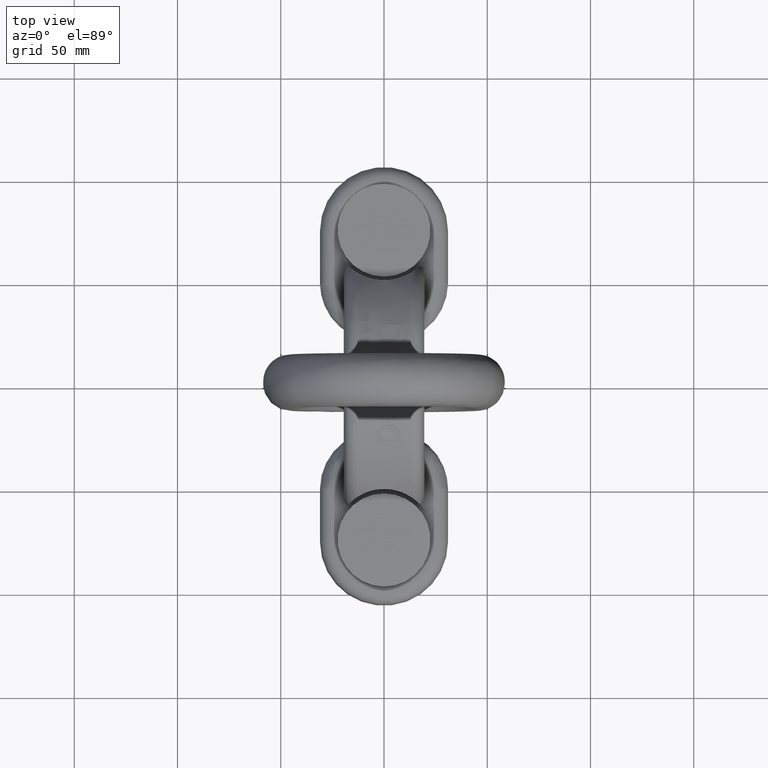
[diagram: clean part render]
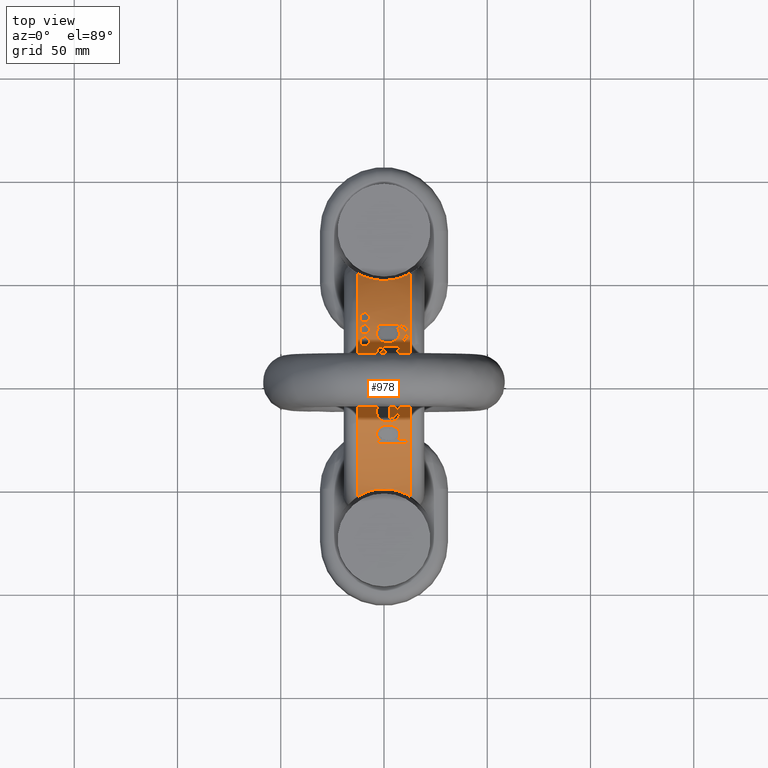
[diagram: same view with one face highlighted and labeled with its STEP entity id]
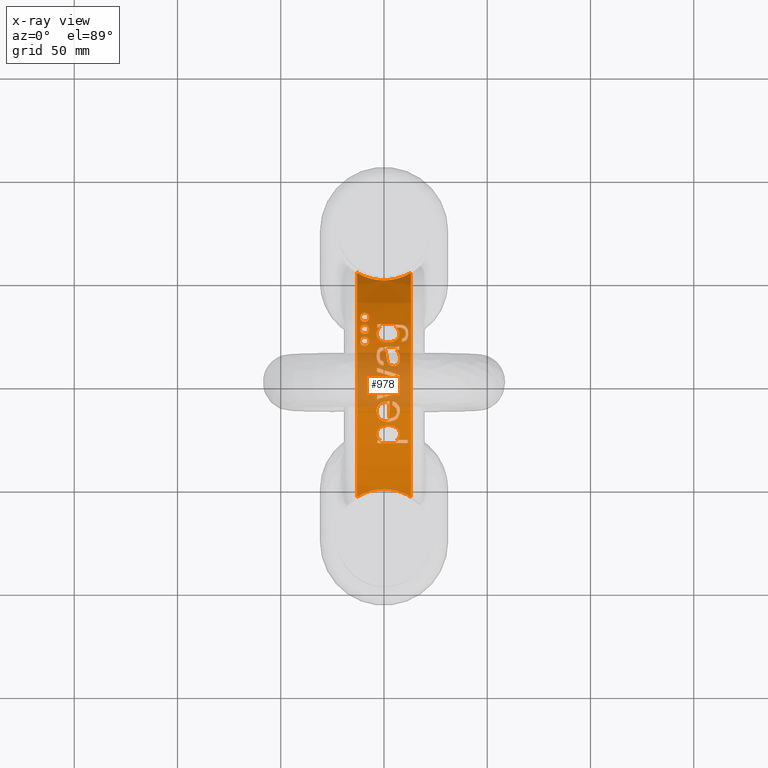
[diagram: x-ray of the same camera — body ghosted, the highlighted face saturated]
A machine part, top view. The second image highlights one B-rep face of the part: STEP entity #978.
The next image is the same camera in x-ray: the body ghosted, the highlighted face saturated — about 24% of this face is hidden behind the body in this view.
In plain terms, the highlighted cylindrical surface (partial cylindrical patch) has radius 60 mm, axis along (-1, 0, 0).
Its self-contained STEP definition (entity closure, byte-faithful):
#978=ADVANCED_FACE('',(#1484,#1485,#1486,#1487,#1488,#1489,#1490,#1491,
#1492),#1149,.T.);
#1149=CYLINDRICAL_SURFACE('',#3549,60.);
#1187=LINE('',#4934,#1313);
#1188=LINE('',#4971,#1314);
#1189=LINE('',#4975,#1315);
#1190=LINE('',#4979,#1316);
#1313=VECTOR('',#3772,1.);
#1314=VECTOR('',#3777,1.);
#1315=VECTOR('',#3780,1.);
#1316=VECTOR('',#3783,1.);
#1484=FACE_BOUND('',#1539,.T.);
#1485=FACE_BOUND('',#1540,.T.);
#1486=FACE_BOUND('',#1541,.T.);
#1487=FACE_BOUND('',#1542,.T.);
#1488=FACE_BOUND('',#1543,.T.);
#1489=FACE_BOUND('',#1544,.T.);
#1490=FACE_BOUND('',#1545,.T.);
#1491=FACE_BOUND('',#1546,.T.);
#1492=FACE_BOUND('',#1547,.T.);
#1539=EDGE_LOOP('',(#2035,#2036,#2037,#2038,#2039,#2040,#2041,#2042,#2043,
#2044,#2045,#2046,#2047,#2048,#2049,#2050,#2051,#2052,#2053));
#1540=EDGE_LOOP('',(#2054,#2055,#2056,#2057,#2058,#2059,#2060,#2061,#2062,
#2063,#2064,#2065,#2066,#2067,#2068,#2069,#2070));
#1541=EDGE_LOOP('',(#2071,#2072,#2073,#2074));
#1542=EDGE_LOOP('',(#2075));
#1543=EDGE_LOOP('',(#2076));
#1544=EDGE_LOOP('',(#2077));
#1545=EDGE_LOOP('',(#2078,#2079,#2080,#2081,#2082,#2083,#2084,#2085,#2086));
#1546=EDGE_LOOP('',(#2087,#2088,#2089,#2090,#2091,#2092,#2093,#2094,#2095,
#2096,#2097));
#1547=EDGE_LOOP('',(#2098,#2099,#2100,#2101,#2102,#2103,#2104,#2105,#2106,
#2107));
#1741=B_SPLINE_CURVE_WITH_KNOTS('',3,(#4303,#4304,#4305,#4306,#4307,#4308,
#4309,#4310,#4311,#4312,#4313,#4314,#4315,#4316,#4317,#4318,#4319,#4320,
#4321,#4322,#4323,#4324,#4325,#4326,#4327,#4328,#4329,#4330,#4331,#4332,
#4333,#4334,#4335,#4336,#4337,#4338,#4339,#4340,#4341,#4342,#4343,#4344,
#4345,#4346,#4347,#4348,#4349,#4350,#4351,#4352,#4353,#4354,#4355,#4356,
#4357,#4358,#4359,#4360,#4361,#4362,#4363,#4364,#4365,#4366),
 .UNSPECIFIED.,.F.,.F.,(4,3,3,3,3,3,3,3,3,3,3,3,3,3,3,3,3,3,3,3,3,4),(0.,
0.499553315865307,0.749371457656765,0.834029702780626,0.88994616152582,
0.926899979169531,0.951339487482945,0.96751761989142,0.978239997821702,
0.985357925570184,0.990093337239225,0.993253011732316,0.995369807442284,
0.996795785484312,0.997763616043689,0.998427273299749,0.998888982295965,
0.999371387624402,0.999590041178173,0.999773233071022,0.999908554315791,
1.),.UNSPECIFIED.);
#1742=B_SPLINE_CURVE_WITH_KNOTS('',3,(#4368,#4369,#4370,#4371,#4372,#4373,
#4374,#4375,#4376,#4377),.UNSPECIFIED.,.F.,.F.,(4,3,3,4),(0.,0.133710786362352,
0.66225942820573,1.),.UNSPECIFIED.);
#1743=B_SPLINE_CURVE_WITH_KNOTS('',3,(#4399,#4400,#4401,#4402,#4403,#4404,
#4405,#4406,#4407,#4408),.UNSPECIFIED.,.F.,.F.,(4,3,3,4),(0.,0.284451124598523,
0.642221045653081,1.),.UNSPECIFIED.);
#1744=B_SPLINE_CURVE_WITH_KNOTS('',3,(#4418,#4419,#4420,#4421,#4422,#4423,
#4424,#4425,#4426,#4427),.UNSPECIFIED.,.F.,.F.,(4,3,3,4),(0.,0.298107772476782,
0.596459384136431,1.),.UNSPECIFIED.);
#1745=B_SPLINE_CURVE_WITH_KNOTS('',3,(#4429,#4430,#4431,#4432,#4433,#4434,
#4435,#4436,#4437,#4438),.UNSPECIFIED.,.F.,.F.,(4,2,2,2,4),(0.,0.25,0.5,
0.75,1.),.UNSPECIFIED.);
#1746=B_SPLINE_CURVE_WITH_KNOTS('',3,(#4440,#4441,#4442,#4443,#4444,#4445,
#4446,#4447,#4448,#4449),.UNSPECIFIED.,.F.,.F.,(4,3,3,4),(0.,0.336609162967316,
0.658853350552495,1.),.UNSPECIFIED.);
#1747=B_SPLINE_CURVE_WITH_KNOTS('',3,(#4453,#4454,#4455,#4456,#4457,#4458,
#4459,#4460,#4461,#4462),.UNSPECIFIED.,.F.,.F.,(4,3,3,4),(0.,0.296612768273009,
0.59303553668682,1.),.UNSPECIFIED.);
#1748=B_SPLINE_CURVE_WITH_KNOTS('',3,(#4464,#4465,#4466,#4467,#4468,#4469,
#4470,#4471,#4472,#4473),.UNSPECIFIED.,.F.,.F.,(4,3,3,4),(0.,0.354196373045435,
0.676989757518121,1.),.UNSPECIFIED.);
#1749=B_SPLINE_CURVE_WITH_KNOTS('',3,(#4475,#4476,#4477,#4478,#4479,#4480,
#4481,#4482,#4483,#4484),.UNSPECIFIED.,.F.,.F.,(4,3,3,4),(0.,0.28406231698317,
0.568435846295675,1.),.UNSPECIFIED.);
#1750=B_SPLINE_CURVE_WITH_KNOTS('',3,(#4486,#4487,#4488,#4489,#4490,#4491,
#4492,#4493,#4494,#4495),.UNSPECIFIED.,.F.,.F.,(4,3,3,4),(0.,0.29480713852608,
0.590298925498015,1.),.UNSPECIFIED.);
#1751=B_SPLINE_CURVE_WITH_KNOTS('',3,(#4497,#4498,#4499,#4500,#4501,#4502),
 .UNSPECIFIED.,.F.,.F.,(4,2,4),(0.,0.5,1.),.UNSPECIFIED.);
#1752=B_SPLINE_CURVE_WITH_KNOTS('',3,(#4504,#4505,#4506,#4507,#4508,#4509,
#4510,#4511,#4512,#4513),.UNSPECIFIED.,.F.,.F.,(4,3,3,4),(0.,0.324752376652679,
0.76867392546096,1.),.UNSPECIFIED.);
#1753=B_SPLINE_CURVE_WITH_KNOTS('',3,(#4517,#4518,#4519,#4520,#4521,#4522,
#4523,#4524,#4525,#4526),.UNSPECIFIED.,.F.,.F.,(4,3,3,4),(0.,0.276746719904194,
0.659623398338799,1.),.UNSPECIFIED.);
#1754=B_SPLINE_CURVE_WITH_KNOTS('',3,(#4528,#4529,#4530,#4531,#4532,#4533,
#4534,#4535),.UNSPECIFIED.,.F.,.F.,(4,2,2,4),(0.,0.25,0.5,1.),
 .UNSPECIFIED.);
#1755=B_SPLINE_CURVE_WITH_KNOTS('',3,(#4537,#4538,#4539,#4540,#4541,#4542,
#4543,#4544,#4545,#4546),.UNSPECIFIED.,.F.,.F.,(4,3,3,4),(0.,0.260453290197887,
0.651117404603194,1.),.UNSPECIFIED.);
#1756=B_SPLINE_CURVE_WITH_KNOTS('',3,(#4548,#4549,#4550,#4551,#4552,#4553),
 .UNSPECIFIED.,.F.,.F.,(4,2,4),(0.,0.5,1.),.UNSPECIFIED.);
#1757=B_SPLINE_CURVE_WITH_KNOTS('',3,(#4555,#4556,#4557,#4558,#4559,#4560,
#4561,#4562,#4563,#4564),.UNSPECIFIED.,.F.,.F.,(4,3,3,4),(0.,0.264702455054214,
0.52953219100473,1.),.UNSPECIFIED.);
#1758=B_SPLINE_CURVE_WITH_KNOTS('',3,(#4568,#4569,#4570,#4571,#4572,#4573,
#4574,#4575,#4576,#4577),.UNSPECIFIED.,.F.,.F.,(4,2,2,2,4),(0.,0.25,0.5,
0.75,1.),.UNSPECIFIED.);
#1759=B_SPLINE_CURVE_WITH_KNOTS('',3,(#4581,#4582,#4583,#4584,#4585,#4586,
#4587,#4588,#4589,#4590),.UNSPECIFIED.,.F.,.F.,(4,2,2,2,4),(0.,0.25,0.5,
0.75,1.),.UNSPECIFIED.);
#1760=B_SPLINE_CURVE_WITH_KNOTS('',3,(#4591,#4592,#4593,#4594,#4595,#4596,
#4597,#4598,#4599,#4600,#4601,#4602,#4603,#4604,#4605,#4606,#4607,#4608,
#4609,#4610,#4611,#4612,#4613,#4614,#4615,#4616,#4617,#4618,#4619,#4620,
#4621,#4622,#4623,#4624,#4625,#4626,#4627,#4628,#4629,#4630,#4631,#4632,
#4633,#4634,#4635,#4636,#4637,#4638,#4639,#4640,#4641,#4642,#4643,#4644,
#4645,#4646,#4647,#4648),.UNSPECIFIED.,.T.,.F.,(1,3,3,3,3,3,3,3,3,3,3,3,
3,3,3,3,3,3,3,3,3,1),(-0.0367197482967945,0.,0.0576245706939571,0.115380338516386,
0.170999496159535,0.223565690324238,0.273920264410145,0.323453498183322,
0.373593188642523,0.425570256117127,0.480210313262631,0.53758347695638,
0.596550106951981,0.6546792113053,0.709389457177726,0.759995746809843,0.808271178746386,
0.856951409014799,0.908279432979366,0.963280251703206,1.,1.05762457069396),
 .UNSPECIFIED.);
#1761=B_SPLINE_CURVE_WITH_KNOTS('',3,(#4650,#4651,#4652,#4653,#4654,#4655,
#4656,#4657,#4658,#4659,#4660,#4661,#4662,#4663,#4664,#4665,#4666,#4667,
#4668,#4669,#4670,#4671,#4672,#4673,#4674,#4675,#4676,#4677,#4678,#4679,
#4680,#4681,#4682,#4683,#4684,#4685,#4686,#4687,#4688,#4689,#4690,#4691,
#4692,#4693,#4694,#4695,#4696,#4697,#4698,#4699,#4700,#4701,#4702,#4703,
#4704,#4705,#4706,#4707),.UNSPECIFIED.,.T.,.F.,(1,3,3,3,3,3,3,3,3,3,3,3,
3,3,3,3,3,3,3,3,3,1),(-0.03670738684152,0.,0.0609914840100623,0.122231249399367,
0.179301292083764,0.230755369736953,0.278391120314941,0.324878189726588,
0.37268124041836,0.423792491215209,0.479527479500673,0.539959743675106,
0.603004205015671,0.664124531326777,0.718757726555894,0.766536662648827,
0.811206380762679,0.857057487616173,0.907225610016423,0.96329261315848,
1.,1.06099148401006),.UNSPECIFIED.);
#1762=B_SPLINE_CURVE_WITH_KNOTS('',3,(#4709,#4710,#4711,#4712,#4713,#4714,
#4715,#4716,#4717,#4718,#4719,#4720,#4721,#4722,#4723,#4724,#4725,#4726,
#4727,#4728,#4729,#4730,#4731,#4732,#4733,#4734,#4735,#4736,#4737,#4738,
#4739,#4740,#4741,#4742,#4743,#4744,#4745,#4746,#4747,#4748,#4749,#4750,
#4751,#4752,#4753,#4754,#4755,#4756,#4757,#4758,#4759,#4760,#4761,#4762,
#4763,#4764,#4765,#4766),.UNSPECIFIED.,.T.,.F.,(1,3,3,3,3,3,3,3,3,3,3,3,
3,3,3,3,3,3,3,3,3,1),(-0.0659954067426767,0.,0.0748415571720553,0.141559223989637,
0.189406139175087,0.237532672015931,0.281312267162048,0.323847856577254,
0.368697963810669,0.418673756299003,0.475805103754141,0.540469776596684,
0.609516497803677,0.662909236118806,0.707889954346454,0.753174917817906,
0.793903464076124,0.83477620696987,0.880423710865823,0.934004593257323,
1.,1.07484155717206),.UNSPECIFIED.);
#1763=B_SPLINE_CURVE_WITH_KNOTS('',3,(#4771,#4772,#4773,#4774,#4775,#4776,
#4777,#4778,#4779,#4780),.UNSPECIFIED.,.F.,.F.,(4,3,3,4),(0.,0.247240170800068,
0.663841143719333,1.),.UNSPECIFIED.);
#1764=B_SPLINE_CURVE_WITH_KNOTS('',3,(#4782,#4783,#4784,#4785,#4786,#4787,
#4788,#4789,#4790,#4791,#4792,#4793,#4794,#4795,#4796,#4797),
 .UNSPECIFIED.,.F.,.F.,(4,3,3,3,3,4),(0.,0.198766169573452,0.395634693446643,
0.634969042156043,0.906976755551038,1.),.UNSPECIFIED.);
#1765=B_SPLINE_CURVE_WITH_KNOTS('',3,(#4799,#4800,#4801,#4802,#4803,#4804,
#4805,#4806,#4807,#4808),.UNSPECIFIED.,.F.,.F.,(4,3,3,4),(0.,0.291582744666723,
0.583827807706858,1.),.UNSPECIFIED.);
#1766=B_SPLINE_CURVE_WITH_KNOTS('',3,(#4812,#4813,#4814,#4815,#4816,#4817,
#4818,#4819,#4820,#4821),.UNSPECIFIED.,.F.,.F.,(4,3,3,4),(0.,0.279743626133196,
0.746666449623462,1.),.UNSPECIFIED.);
#1767=B_SPLINE_CURVE_WITH_KNOTS('',3,(#4823,#4824,#4825,#4826,#4827,#4828),
 .UNSPECIFIED.,.F.,.F.,(4,2,4),(0.,0.5,1.),.UNSPECIFIED.);
#1768=B_SPLINE_CURVE_WITH_KNOTS('',3,(#4830,#4831,#4832,#4833,#4834,#4835,
#4836,#4837,#4838,#4839,#4840,#4841),.UNSPECIFIED.,.F.,.F.,(4,2,2,2,2,4),
(0.,0.125,0.25,0.5,0.75,1.),.UNSPECIFIED.);
#1769=B_SPLINE_CURVE_WITH_KNOTS('',3,(#4843,#4844,#4845,#4846,#4847,#4848,
#4849,#4850,#4851,#4852),.UNSPECIFIED.,.F.,.F.,(4,3,3,4),(0.,0.326762048751425,
0.655781069521528,1.),.UNSPECIFIED.);
#1770=B_SPLINE_CURVE_WITH_KNOTS('',3,(#4853,#4854,#4855,#4856,#4857,#4858,
#4859,#4860),.UNSPECIFIED.,.F.,.F.,(4,2,2,4),(0.,0.25,0.5,1.),
 .UNSPECIFIED.);
#1771=B_SPLINE_CURVE_WITH_KNOTS('',3,(#4863,#4864,#4865,#4866,#4867,#4868,
#4869,#4870),.UNSPECIFIED.,.F.,.F.,(4,2,2,4),(0.,0.499999999999999,0.749999999999999,
1.),.UNSPECIFIED.);
#1772=B_SPLINE_CURVE_WITH_KNOTS('',3,(#4872,#4873,#4874,#4875,#4876,#4877,
#4878,#4879,#4880,#4881,#4882,#4883,#4884),.UNSPECIFIED.,.F.,.F.,(4,3,3,
3,4),(0.,0.401043475483827,0.633320924333611,0.866741825314156,1.),
 .UNSPECIFIED.);
#1773=B_SPLINE_CURVE_WITH_KNOTS('',3,(#4888,#4889,#4890,#4891,#4892,#4893,
#4894,#4895,#4896,#4897),.UNSPECIFIED.,.F.,.F.,(4,3,3,4),(0.,0.256741034385995,
0.614734922507191,1.),.UNSPECIFIED.);
#1774=B_SPLINE_CURVE_WITH_KNOTS('',3,(#4899,#4900,#4901,#4902,#4903,#4904),
 .UNSPECIFIED.,.F.,.F.,(4,2,4),(0.,0.5,1.),.UNSPECIFIED.);
#1775=B_SPLINE_CURVE_WITH_KNOTS('',3,(#4906,#4907,#4908,#4909,#4910,#4911),
 .UNSPECIFIED.,.F.,.F.,(4,2,4),(0.,0.5,1.),.UNSPECIFIED.);
#1776=B_SPLINE_CURVE_WITH_KNOTS('',3,(#4913,#4914,#4915,#4916,#4917,#4918,
#4919,#4920,#4921,#4922,#4923,#4924,#4925,#4926,#4927,#4928,#4929,#4930),
 .UNSPECIFIED.,.F.,.F.,(4,2,2,2,2,2,2,2,4),(0.,0.125,0.25,0.375,0.5,0.625,
0.75,0.875,1.),.UNSPECIFIED.);
#1777=B_SPLINE_CURVE_WITH_KNOTS('',3,(#4937,#4938,#4939,#4940,#4941,#4942),
 .UNSPECIFIED.,.F.,.F.,(4,2,4),(0.,0.5,1.),.UNSPECIFIED.);
#1778=B_SPLINE_CURVE_WITH_KNOTS('',3,(#4945,#4946,#4947,#4948,#4949,#4950,
#4951,#4952,#4953,#4954),.UNSPECIFIED.,.F.,.F.,(4,3,3,4),(0.,0.352238037569731,
0.705837311240717,1.),.UNSPECIFIED.);
#1779=B_SPLINE_CURVE_WITH_KNOTS('',3,(#4956,#4957,#4958,#4959,#4960,#4961,
#4962,#4963,#4964,#4965,#4966,#4967),.UNSPECIFIED.,.F.,.F.,(4,2,2,2,2,4),
(0.,0.125,0.25,0.5,0.75,1.),.UNSPECIFIED.);
#1957=CIRCLE('',#3520,60.);
#1958=CIRCLE('',#3522,60.);
#1959=CIRCLE('',#3524,60.);
#1960=CIRCLE('',#3526,60.);
#1961=CIRCLE('',#3530,60.);
#1962=CIRCLE('',#3532,60.);
#1963=CIRCLE('',#3534,60.);
#1964=CIRCLE('',#3535,60.);
#1965=CIRCLE('',#3538,60.);
#1966=CIRCLE('',#3539,60.);
#1967=CIRCLE('',#3540,60.);
#1968=CIRCLE('',#3543,60.);
#1969=CIRCLE('',#3544,60.);
#1970=CIRCLE('',#3545,60.);
#1971=CIRCLE('',#3546,60.);
#1972=CIRCLE('',#3547,60.);
#1973=CIRCLE('',#3548,60.);
#2035=ORIENTED_EDGE('',*,*,#3097,.F.);
#2036=ORIENTED_EDGE('',*,*,#3098,.F.);
#2037=ORIENTED_EDGE('',*,*,#3099,.F.);
#2038=ORIENTED_EDGE('',*,*,#3100,.F.);
#2039=ORIENTED_EDGE('',*,*,#3101,.F.);
#2040=ORIENTED_EDGE('',*,*,#3102,.F.);
#2041=ORIENTED_EDGE('',*,*,#3103,.F.);
#2042=ORIENTED_EDGE('',*,*,#3104,.F.);
#2043=ORIENTED_EDGE('',*,*,#3105,.F.);
#2044=ORIENTED_EDGE('',*,*,#3106,.F.);
#2045=ORIENTED_EDGE('',*,*,#3107,.F.);
#2046=ORIENTED_EDGE('',*,*,#3108,.F.);
#2047=ORIENTED_EDGE('',*,*,#3109,.F.);
#2048=ORIENTED_EDGE('',*,*,#3110,.F.);
#2049=ORIENTED_EDGE('',*,*,#3111,.F.);
#2050=ORIENTED_EDGE('',*,*,#3112,.F.);
#2051=ORIENTED_EDGE('',*,*,#3113,.F.);
#2052=ORIENTED_EDGE('',*,*,#3114,.F.);
#2053=ORIENTED_EDGE('',*,*,#3115,.F.);
#2054=ORIENTED_EDGE('',*,*,#3116,.F.);
#2055=ORIENTED_EDGE('',*,*,#3117,.F.);
#2056=ORIENTED_EDGE('',*,*,#3118,.F.);
#2057=ORIENTED_EDGE('',*,*,#3119,.F.);
#2058=ORIENTED_EDGE('',*,*,#3120,.F.);
#2059=ORIENTED_EDGE('',*,*,#3121,.F.);
#2060=ORIENTED_EDGE('',*,*,#3122,.F.);
#2061=ORIENTED_EDGE('',*,*,#3123,.F.);
#2062=ORIENTED_EDGE('',*,*,#3124,.F.);
#2063=ORIENTED_EDGE('',*,*,#3125,.F.);
#2064=ORIENTED_EDGE('',*,*,#3126,.F.);
#2065=ORIENTED_EDGE('',*,*,#3127,.F.);
#2066=ORIENTED_EDGE('',*,*,#3128,.F.);
#2067=ORIENTED_EDGE('',*,*,#3129,.F.);
#2068=ORIENTED_EDGE('',*,*,#3130,.F.);
#2069=ORIENTED_EDGE('',*,*,#3131,.F.);
#2070=ORIENTED_EDGE('',*,*,#3132,.F.);
#2071=ORIENTED_EDGE('',*,*,#3133,.T.);
#2072=ORIENTED_EDGE('',*,*,#3134,.T.);
#2073=ORIENTED_EDGE('',*,*,#3135,.T.);
#2074=ORIENTED_EDGE('',*,*,#3136,.F.);
#2075=ORIENTED_EDGE('',*,*,#3137,.T.);
#2076=ORIENTED_EDGE('',*,*,#3138,.T.);
#2077=ORIENTED_EDGE('',*,*,#3139,.T.);
#2078=ORIENTED_EDGE('',*,*,#3140,.F.);
#2079=ORIENTED_EDGE('',*,*,#3141,.F.);
#2080=ORIENTED_EDGE('',*,*,#3142,.F.);
#2081=ORIENTED_EDGE('',*,*,#3143,.F.);
#2082=ORIENTED_EDGE('',*,*,#3144,.F.);
#2083=ORIENTED_EDGE('',*,*,#3145,.F.);
#2084=ORIENTED_EDGE('',*,*,#3146,.F.);
#2085=ORIENTED_EDGE('',*,*,#3147,.F.);
#2086=ORIENTED_EDGE('',*,*,#3148,.F.);
#2087=ORIENTED_EDGE('',*,*,#3149,.F.);
#2088=ORIENTED_EDGE('',*,*,#3150,.F.);
#2089=ORIENTED_EDGE('',*,*,#3151,.F.);
#2090=ORIENTED_EDGE('',*,*,#3152,.F.);
#2091=ORIENTED_EDGE('',*,*,#3153,.F.);
#2092=ORIENTED_EDGE('',*,*,#3154,.F.);
#2093=ORIENTED_EDGE('',*,*,#3155,.F.);
#2094=ORIENTED_EDGE('',*,*,#3156,.F.);
#2095=ORIENTED_EDGE('',*,*,#3157,.F.);
#2096=ORIENTED_EDGE('',*,*,#3158,.F.);
#2097=ORIENTED_EDGE('',*,*,#3159,.F.);
#2098=ORIENTED_EDGE('',*,*,#3160,.F.);
#2099=ORIENTED_EDGE('',*,*,#3161,.F.);
#2100=ORIENTED_EDGE('',*,*,#3162,.F.);
#2101=ORIENTED_EDGE('',*,*,#3163,.F.);
#2102=ORIENTED_EDGE('',*,*,#3164,.F.);
#2103=ORIENTED_EDGE('',*,*,#3165,.F.);
#2104=ORIENTED_EDGE('',*,*,#3166,.F.);
#2105=ORIENTED_EDGE('',*,*,#3167,.F.);
#2106=ORIENTED_EDGE('',*,*,#3168,.F.);
#2107=ORIENTED_EDGE('',*,*,#3169,.F.);
#2835=VERTEX_POINT('',#4297);
#2836=VERTEX_POINT('',#4298);
#2837=VERTEX_POINT('',#4300);
#2838=VERTEX_POINT('',#4302);
#2839=VERTEX_POINT('',#4367);
#2840=VERTEX_POINT('',#4378);
#2841=VERTEX_POINT('',#4380);
#2842=VERTEX_POINT('',#4382);
#2843=VERTEX_POINT('',#4384);
#2844=VERTEX_POINT('',#4386);
#2845=VERTEX_POINT('',#4388);
#2846=VERTEX_POINT('',#4390);
#2847=VERTEX_POINT('',#4392);
#2848=VERTEX_POINT('',#4394);
#2849=VERTEX_POINT('',#4396);
#2850=VERTEX_POINT('',#4398);
#2851=VERTEX_POINT('',#4409);
#2852=VERTEX_POINT('',#4411);
#2853=VERTEX_POINT('',#4413);
#2854=VERTEX_POINT('',#4416);
#2855=VERTEX_POINT('',#4417);
#2856=VERTEX_POINT('',#4428);
#2857=VERTEX_POINT('',#4439);
#2858=VERTEX_POINT('',#4450);
#2859=VERTEX_POINT('',#4452);
#2860=VERTEX_POINT('',#4463);
#2861=VERTEX_POINT('',#4474);
#2862=VERTEX_POINT('',#4485);
#2863=VERTEX_POINT('',#4496);
#2864=VERTEX_POINT('',#4503);
#2865=VERTEX_POINT('',#4514);
#2866=VERTEX_POINT('',#4516);
#2867=VERTEX_POINT('',#4527);
#2868=VERTEX_POINT('',#4536);
#2869=VERTEX_POINT('',#4547);
#2870=VERTEX_POINT('',#4554);
#2871=VERTEX_POINT('',#4566);
#2872=VERTEX_POINT('',#4567);
#2873=VERTEX_POINT('',#4578);
#2874=VERTEX_POINT('',#4580);
#2875=VERTEX_POINT('',#4649);
#2876=VERTEX_POINT('',#4708);
#2877=VERTEX_POINT('',#4767);
#2878=VERTEX_POINT('',#4769);
#2879=VERTEX_POINT('',#4770);
#2880=VERTEX_POINT('',#4781);
#2881=VERTEX_POINT('',#4798);
#2882=VERTEX_POINT('',#4809);
#2883=VERTEX_POINT('',#4811);
#2884=VERTEX_POINT('',#4822);
#2885=VERTEX_POINT('',#4829);
#2886=VERTEX_POINT('',#4842);
#2887=VERTEX_POINT('',#4861);
#2888=VERTEX_POINT('',#4862);
#2889=VERTEX_POINT('',#4871);
#2890=VERTEX_POINT('',#4885);
#2891=VERTEX_POINT('',#4887);
#2892=VERTEX_POINT('',#4898);
#2893=VERTEX_POINT('',#4905);
#2894=VERTEX_POINT('',#4912);
#2895=VERTEX_POINT('',#4931);
#2896=VERTEX_POINT('',#4933);
#2897=VERTEX_POINT('',#4935);
#2898=VERTEX_POINT('',#4943);
#2899=VERTEX_POINT('',#4944);
#2900=VERTEX_POINT('',#4955);
#2901=VERTEX_POINT('',#4968);
#2902=VERTEX_POINT('',#4970);
#2903=VERTEX_POINT('',#4972);
#2904=VERTEX_POINT('',#4974);
#2905=VERTEX_POINT('',#4976);
#2906=VERTEX_POINT('',#4978);
#2907=VERTEX_POINT('',#4980);
#3097=EDGE_CURVE('',#2835,#2836,#3497,.T.);
#3098=EDGE_CURVE('',#2837,#2835,#1957,.T.);
#3099=EDGE_CURVE('',#2838,#2837,#3498,.T.);
#3100=EDGE_CURVE('',#2839,#2838,#1741,.T.);
#3101=EDGE_CURVE('',#2840,#2839,#1742,.T.);
#3102=EDGE_CURVE('',#2841,#2840,#1958,.T.);
#3103=EDGE_CURVE('',#2842,#2841,#3499,.T.);
#3104=EDGE_CURVE('',#2843,#2842,#1959,.T.);
#3105=EDGE_CURVE('',#2844,#2843,#3500,.T.);
#3106=EDGE_CURVE('',#2845,#2844,#1960,.T.);
#3107=EDGE_CURVE('',#2846,#2845,#3501,.T.);
#3108=EDGE_CURVE('',#2847,#2846,#3502,.T.);
#3109=EDGE_CURVE('',#2848,#2847,#3503,.T.);
#3110=EDGE_CURVE('',#2849,#2848,#1961,.T.);
#3111=EDGE_CURVE('',#2850,#2849,#3504,.T.);
#3112=EDGE_CURVE('',#2851,#2850,#1743,.T.);
#3113=EDGE_CURVE('',#2852,#2851,#1962,.T.);
#3114=EDGE_CURVE('',#2853,#2852,#3505,.T.);
#3115=EDGE_CURVE('',#2836,#2853,#1963,.T.);
#3116=EDGE_CURVE('',#2854,#2855,#1964,.T.);
#3117=EDGE_CURVE('',#2856,#2854,#1744,.T.);
#3118=EDGE_CURVE('',#2857,#2856,#1745,.T.);
#3119=EDGE_CURVE('',#2858,#2857,#1746,.T.);
#3120=EDGE_CURVE('',#2859,#2858,#3506,.T.);
#3121=EDGE_CURVE('',#2860,#2859,#1747,.T.);
#3122=EDGE_CURVE('',#2861,#2860,#1748,.T.);
#3123=EDGE_CURVE('',#2862,#2861,#1749,.T.);
#3124=EDGE_CURVE('',#2863,#2862,#1750,.T.);
#3125=EDGE_CURVE('',#2864,#2863,#1751,.T.);
#3126=EDGE_CURVE('',#2865,#2864,#1752,.T.);
#3127=EDGE_CURVE('',#2866,#2865,#3507,.T.);
#3128=EDGE_CURVE('',#2867,#2866,#1753,.T.);
#3129=EDGE_CURVE('',#2868,#2867,#1754,.T.);
#3130=EDGE_CURVE('',#2869,#2868,#1755,.T.);
#3131=EDGE_CURVE('',#2870,#2869,#1756,.T.);
#3132=EDGE_CURVE('',#2855,#2870,#1757,.T.);
#3133=EDGE_CURVE('',#2871,#2872,#1965,.T.);
#3134=EDGE_CURVE('',#2872,#2873,#1758,.T.);
#3135=EDGE_CURVE('',#2873,#2874,#1966,.T.);
#3136=EDGE_CURVE('',#2871,#2874,#1759,.T.);
#3137=EDGE_CURVE('',#2875,#2875,#1760,.T.);
#3138=EDGE_CURVE('',#2876,#2876,#1761,.T.);
#3139=EDGE_CURVE('',#2877,#2877,#1762,.T.);
#3140=EDGE_CURVE('',#2878,#2879,#1967,.T.);
#3141=EDGE_CURVE('',#2880,#2878,#1763,.T.);
#3142=EDGE_CURVE('',#2881,#2880,#1764,.T.);
#3143=EDGE_CURVE('',#2882,#2881,#1765,.T.);
#3144=EDGE_CURVE('',#2883,#2882,#3508,.T.);
#3145=EDGE_CURVE('',#2884,#2883,#1766,.T.);
#3146=EDGE_CURVE('',#2885,#2884,#1767,.T.);
#3147=EDGE_CURVE('',#2886,#2885,#1768,.T.);
#3148=EDGE_CURVE('',#2879,#2886,#1769,.T.);
#3149=EDGE_CURVE('',#2887,#2888,#1770,.T.);
#3150=EDGE_CURVE('',#2889,#2887,#1771,.T.);
#3151=EDGE_CURVE('',#2890,#2889,#1772,.T.);
#3152=EDGE_CURVE('',#2891,#2890,#3509,.T.);
#3153=EDGE_CURVE('',#2892,#2891,#1773,.T.);
#3154=EDGE_CURVE('',#2893,#2892,#1774,.T.);
#3155=EDGE_CURVE('',#2894,#2893,#1775,.T.);
#3156=EDGE_CURVE('',#2895,#2894,#1776,.T.);
#3157=EDGE_CURVE('',#2896,#2895,#1968,.T.);
#3158=EDGE_CURVE('',#2897,#2896,#1187,.T.);
#3159=EDGE_CURVE('',#2888,#2897,#1969,.T.);
#3160=EDGE_CURVE('',#2898,#2899,#1777,.T.);
#3161=EDGE_CURVE('',#2900,#2898,#1778,.T.);
#3162=EDGE_CURVE('',#2901,#2900,#1779,.T.);
#3163=EDGE_CURVE('',#2902,#2901,#1970,.T.);
#3164=EDGE_CURVE('',#2903,#2902,#1188,.T.);
#3165=EDGE_CURVE('',#2904,#2903,#1971,.T.);
#3166=EDGE_CURVE('',#2905,#2904,#1189,.T.);
#3167=EDGE_CURVE('',#2906,#2905,#1972,.T.);
#3168=EDGE_CURVE('',#2907,#2906,#1190,.T.);
#3169=EDGE_CURVE('',#2899,#2907,#1973,.T.);
#3497=ELLIPSE('',#3519,197.209143389064,60.);
#3498=ELLIPSE('',#3521,231.539171239734,60.);
#3499=ELLIPSE('',#3523,235.879082270835,60.);
#3500=ELLIPSE('',#3525,201.125722864571,60.);
#3501=ELLIPSE('',#3527,222.664512791699,60.);
#3502=ELLIPSE('',#3528,242.19238895149,60.);
#3503=ELLIPSE('',#3529,225.513444192765,60.);
#3504=ELLIPSE('',#3531,237.088435682752,60.);
#3505=ELLIPSE('',#3533,208.853597525105,60.);
#3506=ELLIPSE('',#3536,60.6787090275533,60.);
#3507=ELLIPSE('',#3537,60.5140401510027,60.);
#3508=ELLIPSE('',#3541,60.4656348250048,60.);
#3509=ELLIPSE('',#3542,60.8271386719424,60.);
#3519=AXIS2_PLACEMENT_3D('',#4296,#3722,#3723);
#3520=AXIS2_PLACEMENT_3D('',#4299,#3724,#3725);
#3521=AXIS2_PLACEMENT_3D('',#4301,#3726,#3727);
#3522=AXIS2_PLACEMENT_3D('',#4379,#3728,#3729);
#3523=AXIS2_PLACEMENT_3D('',#4381,#3730,#3731);
#3524=AXIS2_PLACEMENT_3D('',#4383,#3732,#3733);
#3525=AXIS2_PLACEMENT_3D('',#4385,#3734,#3735);
#3526=AXIS2_PLACEMENT_3D('',#4387,#3736,#3737);
#3527=AXIS2_PLACEMENT_3D('',#4389,#3738,#3739);
#3528=AXIS2_PLACEMENT_3D('',#4391,#3740,#3741);
#3529=AXIS2_PLACEMENT_3D('',#4393,#3742,#3743);
#3530=AXIS2_PLACEMENT_3D('',#4395,#3744,#3745);
#3531=AXIS2_PLACEMENT_3D('',#4397,#3746,#3747);
#3532=AXIS2_PLACEMENT_3D('',#4410,#3748,#3749);
#3533=AXIS2_PLACEMENT_3D('',#4412,#3750,#3751);
#3534=AXIS2_PLACEMENT_3D('',#4414,#3752,#3753);
#3535=AXIS2_PLACEMENT_3D('',#4415,#3754,#3755);
#3536=AXIS2_PLACEMENT_3D('',#4451,#3756,#3757);
#3537=AXIS2_PLACEMENT_3D('',#4515,#3758,#3759);
#3538=AXIS2_PLACEMENT_3D('',#4565,#3760,#3761);
#3539=AXIS2_PLACEMENT_3D('',#4579,#3762,#3763);
#3540=AXIS2_PLACEMENT_3D('',#4768,#3764,#3765);
#3541=AXIS2_PLACEMENT_3D('',#4810,#3766,#3767);
#3542=AXIS2_PLACEMENT_3D('',#4886,#3768,#3769);
#3543=AXIS2_PLACEMENT_3D('',#4932,#3770,#3771);
#3544=AXIS2_PLACEMENT_3D('',#4936,#3773,#3774);
#3545=AXIS2_PLACEMENT_3D('',#4969,#3775,#3776);
#3546=AXIS2_PLACEMENT_3D('',#4973,#3778,#3779);
#3547=AXIS2_PLACEMENT_3D('',#4977,#3781,#3782);
#3548=AXIS2_PLACEMENT_3D('',#4981,#3784,#3785);
#3549=AXIS2_PLACEMENT_3D('',#4982,#3786,#3787);
#3722=DIRECTION('',(-0.304245528218887,-0.952593648183112,0.));
#3723=DIRECTION('',(-0.952593648183112,0.304245528218887,0.));
#3724=DIRECTION('',(-1.,0.,0.));
#3725=DIRECTION('',(0.,0.,1.));
#3726=DIRECTION('',(-0.259135418334362,0.965840998800877,0.));
#3727=DIRECTION('',(-0.965840998800877,-0.259135418334362,0.));
#3728=DIRECTION('',(-1.,0.,0.));
#3729=DIRECTION('',(0.,0.,1.));
#3730=DIRECTION('',(-0.254367616756743,-0.96710760287855,0.));
#3731=DIRECTION('',(-0.96710760287855,0.254367616756743,0.));
#3732=DIRECTION('',(-1.,0.,0.));
#3733=DIRECTION('',(0.,0.,1.));
#3734=DIRECTION('',(-0.298320866895783,0.954465641275027,0.));
#3735=DIRECTION('',(-0.954465641275027,-0.298320866895783,0.));
#3736=DIRECTION('',(1.,0.,0.));
#3737=DIRECTION('',(0.,0.,-1.));
#3738=DIRECTION('',(0.269463684391098,-0.963010551756508,0.));
#3739=DIRECTION('',(-0.963010551756508,-0.269463684391098,0.));
#3740=DIRECTION('',(0.247736934507953,0.968827338219046,0.));
#3741=DIRECTION('',(-0.968827338219046,0.247736934507953,0.));
#3742=DIRECTION('',(0.266059525696007,0.963956601090742,0.));
#3743=DIRECTION('',(-0.963956601090742,0.266059525696007,0.));
#3744=DIRECTION('',(1.,0.,0.));
#3745=DIRECTION('',(0.,0.,-1.));
#3746=DIRECTION('',(0.25307012477102,-0.967447937590639,0.));
#3747=DIRECTION('',(-0.967447937590639,-0.25307012477102,0.));
#3748=DIRECTION('',(1.,0.,0.));
#3749=DIRECTION('',(0.,0.,-1.));
#3750=DIRECTION('',(0.287282578375446,0.957845874951683,0.));
#3751=DIRECTION('',(-0.957845874951683,0.287282578375446,0.));
#3752=DIRECTION('',(1.,0.,0.));
#3753=DIRECTION('',(0.,0.,-1.));
#3754=DIRECTION('',(-1.,0.,0.));
#3755=DIRECTION('',(0.,0.,1.));
#3756=DIRECTION('',(0.988814708842188,0.149149158822096,0.));
#3757=DIRECTION('',(-0.149149158822096,0.988814708842188,0.));
#3758=DIRECTION('',(-0.991505439899236,0.130065224599902,0.));
#3759=DIRECTION('',(-0.130065224599902,-0.991505439899236,0.));
#3760=DIRECTION('',(1.,0.,0.));
#3761=DIRECTION('',(0.,0.,1.));
#3762=DIRECTION('',(-1.,0.,0.));
#3763=DIRECTION('',(0.,0.,-1.));
#3764=DIRECTION('',(-1.,0.,0.));
#3765=DIRECTION('',(0.,0.,1.));
#3766=DIRECTION('',(0.992299182397532,-0.123864170013732,0.));
#3767=DIRECTION('',(-0.123864170013732,-0.992299182397532,0.));
#3768=DIRECTION('',(0.986401815209434,-0.164351632031851,0.));
#3769=DIRECTION('',(-0.164351632031851,-0.986401815209434,0.));
#3770=DIRECTION('',(1.,0.,0.));
#3771=DIRECTION('',(0.,0.,-1.));
#3772=DIRECTION('',(1.,0.,0.));
#3773=DIRECTION('',(1.,0.,0.));
#3774=DIRECTION('',(0.,0.,-1.));
#3775=DIRECTION('',(-1.,0.,0.));
#3776=DIRECTION('',(0.,0.,1.));
#3777=DIRECTION('',(-1.,0.,0.));
#3778=DIRECTION('',(-1.,0.,0.));
#3779=DIRECTION('',(0.,0.,1.));
#3780=DIRECTION('',(1.,0.,0.));
#3781=DIRECTION('',(1.,2.79032074607833E-16,0.));
#3782=DIRECTION('',(-2.81892564846231E-16,1.,0.));
#3783=DIRECTION('',(-1.,0.,0.));
#3784=DIRECTION('',(1.,0.,0.));
#3785=DIRECTION('',(0.,0.,-1.));
#3786=DIRECTION('',(-1.,0.,0.));
#3787=DIRECTION('',(0.,0.,1.));
#4296=CARTESIAN_POINT('',(20.2811404449002,3.46944695195361E-15,30.));
#4297=CARTESIAN_POINT('',(7.5,4.08212340415581,89.8609745035381));
#4298=CARTESIAN_POINT('',(-3.35571757482732,7.54929278330068,89.5231734576711));
#4299=CARTESIAN_POINT('',(7.5,3.46944695195361E-15,30.));
#4300=CARTESIAN_POINT('',(7.5,2.13769733341915,89.9619066584001));
#4301=CARTESIAN_POINT('',(-0.467555114289593,3.46944695195361E-15,30.));
#4302=CARTESIAN_POINT('',(0.980429777436685,0.388494763760475,89.9987422519716));
#4303=CARTESIAN_POINT('',(0.101688411358403,0.169844442553139,89.9997596067295));
#4304=CARTESIAN_POINT('',(0.248665294413564,0.20405515752467,89.999662764678));
#4305=CARTESIAN_POINT('',(0.395580955451675,0.238535966419098,89.9995361681858));
#4306=CARTESIAN_POINT('',(0.542321481005171,0.273746460629341,89.999375520711));
#4307=CARTESIAN_POINT('',(0.615703988544831,0.291354645874093,89.9992951835683));
#4308=CARTESIAN_POINT('',(0.689047668006492,0.309130645371404,89.9992064251223));
#4309=CARTESIAN_POINT('',(0.762270934178863,0.32738962724586,89.9991067936179));
#4310=CARTESIAN_POINT('',(0.787085014231007,0.333577275811506,89.9990730302494));
#4311=CARTESIAN_POINT('',(0.811884738084186,0.339823424921931,89.9990379957663));
#4312=CARTESIAN_POINT('',(0.836656681213671,0.346177651314577,89.9990013336366));
#4313=CARTESIAN_POINT('',(0.853018461129673,0.35037459514048,89.998977118431));
#4314=CARTESIAN_POINT('',(0.869368567541414,0.354617923453982,89.998952198131));
#4315=CARTESIAN_POINT('',(0.885695768986061,0.358947425500486,89.9989262966073));
#4316=CARTESIAN_POINT('',(0.89648601837139,0.361808687851811,89.9989091789217));
#4317=CARTESIAN_POINT('',(0.907266666796542,0.364706985055375,89.9988916365977));
#4318=CARTESIAN_POINT('',(0.918028239992904,0.367674274854423,89.9988734529875));
#4319=CARTESIAN_POINT('',(0.92514543727299,0.36963670046838,89.9988614272048));
#4320=CARTESIAN_POINT('',(0.932254659491302,0.371628833080621,89.9988491239861));
#4321=CARTESIAN_POINT('',(0.939347847886167,0.373676336881713,89.9988363720102));
#4322=CARTESIAN_POINT('',(0.944043301093588,0.375031715838939,89.9988279306291));
#4323=CARTESIAN_POINT('',(0.948732068164348,0.376410997051855,89.9988192949537));
#4324=CARTESIAN_POINT('',(0.953407234869128,0.377834773751391,89.9988103289035));
#4325=CARTESIAN_POINT('',(0.956505795132204,0.378778410242505,89.9988043864743));
#4326=CARTESIAN_POINT('',(0.959598697781642,0.37974131894891,89.9987983007001));
#4327=CARTESIAN_POINT('',(0.962679956161081,0.380740001821387,89.9987919632638));
#4328=CARTESIAN_POINT('',(0.964725414909044,0.381402966223068,89.998787756228));
#4329=CARTESIAN_POINT('',(0.96676603940943,0.382081494954524,89.9987834395956));
#4330=CARTESIAN_POINT('',(0.968796595151151,0.382788788389985,89.9987789271038));
#4331=CARTESIAN_POINT('',(0.97014748280107,0.383259336401645,89.9987759250343));
#4332=CARTESIAN_POINT('',(0.971494195155556,0.383742474465974,89.9987728371973));
#4333=CARTESIAN_POINT('',(0.972832106116356,0.384248740833669,89.9987695949272));
#4334=CARTESIAN_POINT('',(0.973724819206329,0.384586544040831,89.9987674315419));
#4335=CARTESIAN_POINT('',(0.97461388179425,0.384934552711317,89.9987651999983));
#4336=CARTESIAN_POINT('',(0.975495155947053,0.385301162412338,89.9987628456974));
#4337=CARTESIAN_POINT('',(0.976085557414092,0.385546769190461,89.9987612684552));
#4338=CARTESIAN_POINT('',(0.976672721127789,0.385800674886148,89.9987596364422));
#4339=CARTESIAN_POINT('',(0.977252893283123,0.386069554684985,89.9987579063013));
#4340=CARTESIAN_POINT('',(0.977643724847729,0.386250684909014,89.9987567407961));
#4341=CARTESIAN_POINT('',(0.978031634627176,0.386438597788797,89.9987555308452));
#4342=CARTESIAN_POINT('',(0.978413158400198,0.38663858973374,89.9987542420751));
#4343=CARTESIAN_POINT('',(0.978672101527613,0.386774325809296,89.9987533673768));
#4344=CARTESIAN_POINT('',(0.978928351007459,0.386915648484925,89.9987524562285));
#4345=CARTESIAN_POINT('',(0.979178641079151,0.387066746202903,89.9987514814598));
#4346=CARTESIAN_POINT('',(0.97935026498838,0.387170353912388,89.998750813061));
#4347=CARTESIAN_POINT('',(0.979519336838044,0.387278617370222,89.9987501143651));
#4348=CARTESIAN_POINT('',(0.979682694120585,0.387394822386152,89.9987493640625));
#4349=CARTESIAN_POINT('',(0.979796335298113,0.387475661603355,89.9987488421067));
#4350=CARTESIAN_POINT('',(0.979907469061711,0.38756044982011,89.9987482944941));
#4351=CARTESIAN_POINT('',(0.980012926796337,0.387651707078834,89.9987477048813));
#4352=CARTESIAN_POINT('',(0.980122809543113,0.387746793496983,89.9987470905282));
#4353=CARTESIAN_POINT('',(0.98022835480638,0.387849276066151,89.9987464281762));
#4354=CARTESIAN_POINT('',(0.980315411044189,0.387965623252824,89.9987456758486));
#4355=CARTESIAN_POINT('',(0.980354992838951,0.388018522741474,89.9987453337884));
#4356=CARTESIAN_POINT('',(0.980390918035527,0.388074901191692,89.9987449691631));
#4357=CARTESIAN_POINT('',(0.980418325622426,0.38813501661672,89.9987445802733));
#4358=CARTESIAN_POINT('',(0.980441203673483,0.388185197019985,89.9987442556537));
#4359=CARTESIAN_POINT('',(0.980458367608504,0.388239113064369,89.9987439068027));
#4360=CARTESIAN_POINT('',(0.980464336911303,0.388293938469075,89.9987435519891));
#4361=CARTESIAN_POINT('',(0.980468754813888,0.38833451494933,89.9987432893902));
#4362=CARTESIAN_POINT('',(0.980466875309776,0.388376421838968,89.9987430181377));
#4363=CARTESIAN_POINT('',(0.980457778460698,0.388416211517988,89.9987427605497));
#4364=CARTESIAN_POINT('',(0.980451583069275,0.388443310201725,89.9987425851199));
#4365=CARTESIAN_POINT('',(0.980442037080066,0.388469815266353,89.9987424135143));
#4366=CARTESIAN_POINT('',(0.980429777436685,0.388494763760475,89.9987422519716));
#4367=CARTESIAN_POINT('',(0.101688411358403,0.169844442553139,89.9997596067295));
#4368=CARTESIAN_POINT('',(-0.857636224098236,-0.0370924685895168,89.999988534572));
#4369=CARTESIAN_POINT('',(-0.813898246059724,-0.0370924685895168,89.999988534572));
#4370=CARTESIAN_POINT('',(-0.770902276438441,-0.0253743285683433,89.999995205849));
#4371=CARTESIAN_POINT('',(-0.72795518974794,-0.0170943248164726,89.999997564867));
#4372=CARTESIAN_POINT('',(-0.558121612164874,0.0156488195489503,90.0000068935665));
#4373=CARTESIAN_POINT('',(-0.389543045002387,0.0546921336736162,89.9999877718004));
#4374=CARTESIAN_POINT('',(-0.221044641485822,0.0937285520334926,89.9999267912765));
#4375=CARTESIAN_POINT('',(-0.113367342197219,0.118674403241384,89.9998878222537));
#4376=CARTESIAN_POINT('',(-0.00580303249831421,0.144109602670464,89.9998324556803));
#4377=CARTESIAN_POINT('',(0.101688411358403,0.169844442553139,89.9997596067295));
#4378=CARTESIAN_POINT('',(-0.857636224098236,-0.0370924685895168,89.999988534572));
#4379=CARTESIAN_POINT('',(-0.857636224098235,3.46944695195361E-15,30.));
#4380=CARTESIAN_POINT('',(-0.857636224098235,-0.0800416388266699,89.99994661111));
#4381=CARTESIAN_POINT('',(-1.16195514033104,3.46944695195361E-15,30.));
#4382=CARTESIAN_POINT('',(7.5,-2.2782582609647,89.956730558765));
#4383=CARTESIAN_POINT('',(7.5,3.46944695195361E-15,30.));
#4384=CARTESIAN_POINT('',(7.5,-4.23439774176603,89.8503957861978));
#4385=CARTESIAN_POINT('',(21.0477856378721,3.46944695195361E-15,30.));
#4386=CARTESIAN_POINT('',(-3.35571757482732,-7.62738219050127,89.5132173632044));
#4387=CARTESIAN_POINT('',(-3.35571757482732,3.46944695195361E-15,30.));
#4388=CARTESIAN_POINT('',(-3.35571757482732,-5.68295611976462,89.7302604191613));
#4389=CARTESIAN_POINT('',(16.954057083191,3.46944695195361E-15,30.));
#4390=CARTESIAN_POINT('',(5.23983115886416,-3.27780258648394,89.9103998501432));
#4391=CARTESIAN_POINT('',(-7.57870460520377,3.46944695195361E-15,30.));
#4392=CARTESIAN_POINT('',(3.77398311588642,-2.90297346441422,89.9297317286245));
#4393=CARTESIAN_POINT('',(-6.74374003833235,3.46944695195361E-15,30.));
#4394=CARTESIAN_POINT('',(-3.35571757482732,-0.935120573548212,89.9927124700403));
#4395=CARTESIAN_POINT('',(-3.35571757482732,3.46944695195361E-15,30.));
#4396=CARTESIAN_POINT('',(-3.35571757482732,0.993687617102204,89.9917709766899));
#4397=CARTESIAN_POINT('',(-7.15443161365237,3.46944695195361E-15,30.));
#4398=CARTESIAN_POINT('',(2.33115886415963,2.48129069531639,89.9486713487908));
#4399=CARTESIAN_POINT('',(5.00191864927091,3.16847741911087,89.9162811833694));
#4400=CARTESIAN_POINT('',(4.74568645016172,3.1163339161191,89.9190386227251));
#4401=CARTESIAN_POINT('',(4.49332395145963,3.04666374275347,89.9226338723568));
#4402=CARTESIAN_POINT('',(4.24000335160348,2.98185816093126,89.9258585412683));
#4403=CARTESIAN_POINT('',(3.92137357772112,2.90034490107774,89.9299145695845));
#4404=CARTESIAN_POINT('',(3.60313627710068,2.81729311514792,89.9338790726384));
#4405=CARTESIAN_POINT('',(3.2850409998783,2.73370689195119,89.9376913688615));
#4406=CARTESIAN_POINT('',(2.96693698955655,2.65011837394895,89.9415037697487));
#4407=CARTESIAN_POINT('',(2.6489972310392,2.56589711052341,89.9451694678301));
#4408=CARTESIAN_POINT('',(2.33115886415963,2.48129069531639,89.9486713487908));
#4409=CARTESIAN_POINT('',(5.00191864927091,3.16847741911087,89.9162811833694));
#4410=CARTESIAN_POINT('',(5.00191864927091,3.46944695195361E-15,30.));
#4411=CARTESIAN_POINT('',(5.00191864927091,3.21142658934803,89.913994519321));
#4412=CARTESIAN_POINT('',(15.7093264173017,3.46944695195361E-15,30.));
#4413=CARTESIAN_POINT('',(-3.35571757482732,5.71809634318925,89.726906618458));
#4414=CARTESIAN_POINT('',(-3.35571757482732,3.46944695195361E-15,30.));
#4415=CARTESIAN_POINT('',(7.5,3.46944695195361E-15,30.));
#4416=CARTESIAN_POINT('',(7.5,16.5097437890117,87.6838656820188));
#4417=CARTESIAN_POINT('',(7.5,18.427295230482,87.1002170791728));
#4418=CARTESIAN_POINT('',(6.16078280890253,16.1330818987229,87.7903423458375));
#4419=CARTESIAN_POINT('',(6.29897726563506,16.1511608248491,87.7852953296061));
#4420=CARTESIAN_POINT('',(6.4367064820868,16.1733523069168,87.7790921856586));
#4421=CARTESIAN_POINT('',(6.57320331475014,16.2009014776448,87.7713665349163));
#4422=CARTESIAN_POINT('',(6.70976420071764,16.2284635762582,87.7636372587898));
#4423=CARTESIAN_POINT('',(6.84536561711537,16.2614310837409,87.7543729735389));
#4424=CARTESIAN_POINT('',(6.97851901988656,16.3015575133562,87.7430447988218));
#4425=CARTESIAN_POINT('',(7.15812336610496,16.3556821621234,87.7277647581201));
#4426=CARTESIAN_POINT('',(7.33471892630875,16.4232027958202,87.7086346465802));
#4427=CARTESIAN_POINT('',(7.5,16.5097437890117,87.6838656820188));
#4428=CARTESIAN_POINT('',(6.16078280890253,16.1330818987229,87.7903423458375));
#4429=CARTESIAN_POINT('',(2.40023023791251,9.44067518136908,89.2526256981062));
#4430=CARTESIAN_POINT('',(3.10767645847992,8.67463979981752,89.3746775249993));
#4431=CARTESIAN_POINT('',(4.21209358401736,8.36348444560285,89.4145253645106));
#4432=CARTESIAN_POINT('',(6.27743220362588,8.72687341955676,89.362238642768));
#4433=CARTESIAN_POINT('',(7.13078626978704,9.52136515862676,89.2477535588164));
#4434=CARTESIAN_POINT('',(7.84289808906276,11.4434656452987,88.9067041199473));
#4435=CARTESIAN_POINT('',(7.84274789191392,12.4946300048453,88.6934153368766));
#4436=CARTESIAN_POINT('',(7.35130114966189,14.4751503463728,88.236610523922));
#4437=CARTESIAN_POINT('',(6.8299651544639,15.3618029536483,88.0056569794347));
#4438=CARTESIAN_POINT('',(6.16078280890253,16.1330818987229,87.7903423458375));
#4439=CARTESIAN_POINT('',(2.40023023791251,9.44067518136908,89.2526256981062));
#4440=CARTESIAN_POINT('',(1.23752877973906,12.7355155550066,88.6328120044415));
#4441=CARTESIAN_POINT('',(1.28568342175286,12.343050607352,88.7180585289519));
#4442=CARTESIAN_POINT('',(1.34926101110261,11.9507755265067,88.7991053964601));
#4443=CARTESIAN_POINT('',(1.43748496282167,11.5634214710321,88.8751839392734));
#4444=CARTESIAN_POINT('',(1.52183338746491,11.1930832156965,88.9479204820196));
#4445=CARTESIAN_POINT('',(1.62880063099003,10.8248999910147,89.0165223482259));
#4446=CARTESIAN_POINT('',(1.77435402544437,10.4721119219836,89.0790561188434));
#4447=CARTESIAN_POINT('',(1.92727481238386,10.1014669820882,89.1447551253762));
#4448=CARTESIAN_POINT('',(2.12734277534939,9.73794263611489,89.2052623036712));
#4449=CARTESIAN_POINT('',(2.40023023791251,9.44067518136908,89.2526256981062));
#4450=CARTESIAN_POINT('',(1.23752877973906,12.7355155550066,88.6328120044415));
#4451=CARTESIAN_POINT('',(3.1585069116472,3.46944695195361E-15,30.));
#4452=CARTESIAN_POINT('',(0.980429777436684,14.4400057252024,88.2364682536305));
#4453=CARTESIAN_POINT('',(0.604374520337681,16.0113326008517,87.8241924141176));
#4454=CARTESIAN_POINT('',(0.658588600585976,15.8610997586544,87.8657914041522));
#4455=CARTESIAN_POINT('',(0.705795482537547,15.7082799844737,87.9074727052401));
#4456=CARTESIAN_POINT('',(0.748037293525542,15.5541874778549,87.9488330504052));
#4457=CARTESIAN_POINT('',(0.790261769061355,15.4001582086594,87.9901764218595));
#4458=CARTESIAN_POINT('',(0.827537039785352,15.2446556242697,88.0312550751438));
#4459=CARTESIAN_POINT('',(0.861100374972326,15.0883201804852,88.0718743810733));
#4460=CARTESIAN_POINT('',(0.907176394208149,14.8737016130832,88.1276368942718));
#4461=CARTESIAN_POINT('',(0.946306165291692,14.6573203821362,88.1825840641459));
#4462=CARTESIAN_POINT('',(0.980429777436684,14.4400057252024,88.2364682536305));
#4463=CARTESIAN_POINT('',(0.604374520337681,16.0113326008517,87.8241924141176));
#4464=CARTESIAN_POINT('',(-0.566001534919418,15.9618719485916,87.8378651395153));
#4465=CARTESIAN_POINT('',(-0.428984493142174,15.9802925353785,87.832781496701));
#4466=CARTESIAN_POINT('',(-0.290626592299519,15.9889724123054,87.8303796491039));
#4467=CARTESIAN_POINT('',(-0.152461219582588,15.9957301438965,87.8285104179905));
#4468=CARTESIAN_POINT('',(-0.0264909851841637,16.0018914056932,87.8268061741784));
#4469=CARTESIAN_POINT('',(0.0996136562901753,16.0056153289865,87.8257752564254));
#4470=CARTESIAN_POINT('',(0.225721940832901,16.0079890009752,87.8251181420726));
#4471=CARTESIAN_POINT('',(0.351920699046532,16.0103643759037,87.8244605562872));
#4472=CARTESIAN_POINT('',(0.478151695936631,16.0113326008517,87.8241924141176));
#4473=CARTESIAN_POINT('',(0.604374520337681,16.0113326008517,87.8241924141176));
#4474=CARTESIAN_POINT('',(-0.566001534919418,15.9618719485916,87.8378651395153));
#4475=CARTESIAN_POINT('',(-1.27973906369916,15.6613033694722,87.9199756281834));
#4476=CARTESIAN_POINT('',(-1.2184696916017,15.7021186522344,87.9089393575614));
#4477=CARTESIAN_POINT('',(-1.15545585340127,15.7406421690282,87.8984760003253));
#4478=CARTESIAN_POINT('',(-1.09062863005175,15.7759476956295,87.8888544912123));
#4479=CARTESIAN_POINT('',(-1.02576031091442,15.8112756033903,87.8792268827559));
#4480=CARTESIAN_POINT('',(-0.958885376759046,15.8434783512573,87.8704157818489));
#4481=CARTESIAN_POINT('',(-0.890185886939619,15.871245643668,87.8627994631987));
#4482=CARTESIAN_POINT('',(-0.786419125471601,15.9131865957153,87.8512954371465));
#4483=CARTESIAN_POINT('',(-0.677197780254945,15.9453343563148,87.8424291207346));
#4484=CARTESIAN_POINT('',(-0.566001534919418,15.9618719485916,87.8378651395153));
#4485=CARTESIAN_POINT('',(-1.27973906369916,15.6613033694722,87.9199756281834));
#4486=CARTESIAN_POINT('',(-1.87068303914045,14.8661282677514,88.129151295428));
#4487=CARTESIAN_POINT('',(-1.83339785527655,14.9571266797241,88.1058790811534));
#4488=CARTESIAN_POINT('',(-1.79135042021242,15.0464736392212,88.0827989771936));
#4489=CARTESIAN_POINT('',(-1.74332447915571,15.1325149474099,88.0603736757387));
#4490=CARTESIAN_POINT('',(-1.69523429185254,15.2186713565414,88.0379183750498));
#4491=CARTESIAN_POINT('',(-1.6408574808968,15.3019489257673,88.01600466664));
#4492=CARTESIAN_POINT('',(-1.57920176666387,15.3795078486423,87.9954372199533));
#4493=CARTESIAN_POINT('',(-1.49429294030815,15.4863176909524,87.9671128743347));
#4494=CARTESIAN_POINT('',(-1.39357506875181,15.5837066703689,87.9409574299184));
#4495=CARTESIAN_POINT('',(-1.27973906369916,15.6613033694722,87.9199756281834));
#4496=CARTESIAN_POINT('',(-1.87068303914045,14.8661282677514,88.129151295428));
#4497=CARTESIAN_POINT('',(-1.65579432079816,11.5332412385292,88.8811034758511));
#4498=CARTESIAN_POINT('',(-1.97510674267212,12.0266390661615,88.7844599716243));
#4499=CARTESIAN_POINT('',(-2.07300305910438,12.6115510057487,88.6625049051971));
#4500=CARTESIAN_POINT('',(-2.11371231055159,13.7504242825777,88.4060487669897));
#4501=CARTESIAN_POINT('',(-2.09442849727792,14.3337058070053,88.2653146561119));
#4502=CARTESIAN_POINT('',(-1.87068303914045,14.8661282677514,88.1291512954281));
#4503=CARTESIAN_POINT('',(-1.65579432079816,11.5332412385292,88.8811034758511));
#4504=CARTESIAN_POINT('',(-0.0211051419800476,10.5934888455864,89.0574126937376));
#4505=CARTESIAN_POINT('',(-0.227223828210979,10.6367200769263,89.0496580437099));
#4506=CARTESIAN_POINT('',(-0.431509802244658,10.692793324926,89.0395623227426));
#4507=CARTESIAN_POINT('',(-0.628145598034388,10.7673803706126,89.0259563239304));
#4508=CARTESIAN_POINT('',(-0.894228101931679,10.8683096434078,89.0075450361107));
#4509=CARTESIAN_POINT('',(-1.15329615198933,11.0071151251598,88.9820309919917));
#4510=CARTESIAN_POINT('',(-1.36486711811871,11.1949726077565,88.9463534776459));
#4511=CARTESIAN_POINT('',(-1.47637697039975,11.2939841144746,88.9275494119121));
#4512=CARTESIAN_POINT('',(-1.57596363300458,11.4082647197703,88.9055830500254));
#4513=CARTESIAN_POINT('',(-1.65579432079816,11.5332412385292,88.8811034758511));
#4514=CARTESIAN_POINT('',(-0.0211051419800476,10.5934888455864,89.0574126937376));
#4515=CARTESIAN_POINT('',(-1.41075410460982,3.46944695195361E-15,30.));
#4516=CARTESIAN_POINT('',(-0.255180353031467,8.80910069866258,89.3498082969172));
#4517=CARTESIAN_POINT('',(-2.76093630084421,10.3195529253763,89.1058950310403));
#4518=CARTESIAN_POINT('',(-2.60486031337264,10.0922324315061,89.1455838956837));
#4519=CARTESIAN_POINT('',(-2.42023641852839,9.88103969074639,89.1810754578937));
#4520=CARTESIAN_POINT('',(-2.21294000332278,9.69737445817629,89.2111554406592));
#4521=CARTESIAN_POINT('',(-1.92803781421805,9.4449502820527,89.2524964977615));
#4522=CARTESIAN_POINT('',(-1.59365748889733,9.24046614067124,89.2843679906841));
#4523=CARTESIAN_POINT('',(-1.24138805608028,9.09218998390682,89.3070997545533));
#4524=CARTESIAN_POINT('',(-0.926446670223611,8.95962583286071,89.3274227589045));
#4525=CARTESIAN_POINT('',(-0.592290229163834,8.8678813714496,89.3410836711673));
#4526=CARTESIAN_POINT('',(-0.255180353031467,8.80910069866258,89.3498082969172));
#4527=CARTESIAN_POINT('',(-2.76093630084421,10.3195529253763,89.1058950310403));
#4528=CARTESIAN_POINT('',(-3.02187260168841,16.5135484545702,87.6827766099948));
#4529=CARTESIAN_POINT('',(-3.31548220806294,16.0552621175677,87.8139758011039));
#4530=CARTESIAN_POINT('',(-3.4413838613857,15.5258277187465,87.9589889898214));
#4531=CARTESIAN_POINT('',(-3.59218366995374,14.4727376941738,88.2308817957454));
#4532=CARTESIAN_POINT('',(-3.61145804739836,13.9421072989767,88.3602392610545));
#4533=CARTESIAN_POINT('',(-3.57139518510177,12.3408084578737,88.7273699120002));
#4534=CARTESIAN_POINT('',(-3.38650470709475,11.2244359749165,88.9479075999033));
#4535=CARTESIAN_POINT('',(-2.76093630084421,10.3195529253763,89.1058950310403));
#4536=CARTESIAN_POINT('',(-3.02187260168841,16.5135484545702,87.6827766099948));
#4537=CARTESIAN_POINT('',(-1.62509593246355,17.6283154632027,87.3519179620857));
#4538=CARTESIAN_POINT('',(-1.78161083346954,17.5892481942349,87.3639261069939));
#4539=CARTESIAN_POINT('',(-1.93382961140193,17.5296456790261,87.3822087127036));
#4540=CARTESIAN_POINT('',(-2.07458820194661,17.4533784302215,87.4053967965685));
#4541=CARTESIAN_POINT('',(-2.28446861731638,17.339658892421,87.4399717710291));
#4542=CARTESIAN_POINT('',(-2.47327581435946,17.1866912351515,87.4860808056346));
#4543=CARTESIAN_POINT('',(-2.6355575031123,17.0155739849249,87.5366860530178));
#4544=CARTESIAN_POINT('',(-2.78135226371163,16.8618413073632,87.5821500852449));
#4545=CARTESIAN_POINT('',(-2.90904984479473,16.6914110930309,87.6318577140765));
#4546=CARTESIAN_POINT('',(-3.02187260168841,16.5135484545702,87.6827766099948));
#4547=CARTESIAN_POINT('',(-1.62509593246355,17.6283154632027,87.3519179620857));
#4548=CARTESIAN_POINT('',(5.99194167306216,17.9250793767636,87.2598596692021));
#4549=CARTESIAN_POINT('',(4.72494663708122,17.7750829214531,87.3068157459932));
#4550=CARTESIAN_POINT('',(3.44892211950119,17.8375720689187,87.2871802647514));
#4551=CARTESIAN_POINT('',(0.903092005050477,17.8375720689187,87.2871802647514));
#4552=CARTESIAN_POINT('',(-0.379300203740942,17.950163686177,87.2529911570639));
#4553=CARTESIAN_POINT('',(-1.62509593246355,17.6283154632027,87.3519179620857));
#4554=CARTESIAN_POINT('',(5.99194167306216,17.9250793767636,87.2598596692021));
#4555=CARTESIAN_POINT('',(7.5,18.427295230482,87.1002170791728));
#4556=CARTESIAN_POINT('',(7.37780672862281,18.3581995209627,87.1225155414834));
#4557=CARTESIAN_POINT('',(7.25208352586645,18.2943606548366,87.1429785701387));
#4558=CARTESIAN_POINT('',(7.12335513914084,18.2369487442728,87.1612954760371));
#4559=CARTESIAN_POINT('',(6.99458970267072,18.1795203097963,87.179617653785));
#4560=CARTESIAN_POINT('',(6.8624645147958,18.1283812693105,87.1958381039771));
#4561=CARTESIAN_POINT('',(6.72788961716825,18.0846465091869,87.2096631753567));
#4562=CARTESIAN_POINT('',(6.48976784988224,18.0072606180878,87.2341257645007));
#4563=CARTESIAN_POINT('',(6.24183039354266,17.952814111236,87.2511773685506));
#4564=CARTESIAN_POINT('',(5.99194167306216,17.9250793767636,87.2598596692021));
#4565=CARTESIAN_POINT('',(-13.,3.46944695195361E-15,30.));
#4566=CARTESIAN_POINT('',(-13.,54.2334403427048,55.6658128372019));
#4567=CARTESIAN_POINT('',(-13.,-54.2334403427048,55.6658128372019));
#4568=CARTESIAN_POINT('',(-13.,-54.2334403427048,55.6658128372019));
#4569=CARTESIAN_POINT('',(-11.5275725588491,-53.3116912879336,57.6135252548822));
#4570=CARTESIAN_POINT('',(-9.67102535273856,-52.3697283957119,59.3146395353575));
#4571=CARTESIAN_POINT('',(-5.2406329237405,-50.9543415391516,61.7110646563634));
#4572=CARTESIAN_POINT('',(-2.64677699934621,-50.5015236465691,62.397470847178));
#4573=CARTESIAN_POINT('',(2.61849405343024,-50.4984845159319,62.4022077876326));
#4574=CARTESIAN_POINT('',(5.20631422397397,-50.9449907210472,61.726456480123));
#4575=CARTESIAN_POINT('',(9.67486123976856,-52.3693517724197,59.3157144768687));
#4576=CARTESIAN_POINT('',(11.5205150136627,-53.3072732192243,57.6228609056679));
#4577=CARTESIAN_POINT('',(13.,-54.2334403427048,55.6658128372019));
#4578=CARTESIAN_POINT('',(13.,-54.2334403427048,55.6658128372019));
#4579=CARTESIAN_POINT('',(13.,3.46944695195361E-15,30.));
#4580=CARTESIAN_POINT('',(13.,54.2334403427048,55.6658128372019));
#4581=CARTESIAN_POINT('',(-13.,54.2334403427048,55.6658128372019));
#4582=CARTESIAN_POINT('',(-11.5275725588491,53.3116912879336,57.6135252548822));
#4583=CARTESIAN_POINT('',(-9.67102535273856,52.3697283957118,59.3146395353576));
#4584=CARTESIAN_POINT('',(-5.24063292374049,50.9543415391516,61.7110646563635));
#4585=CARTESIAN_POINT('',(-2.6467769993462,50.5015236465691,62.397470847178));
#4586=CARTESIAN_POINT('',(2.61849405343025,50.4984845159319,62.4022077876326));
#4587=CARTESIAN_POINT('',(5.20631422397398,50.9449907210472,61.7264564801231));
#4588=CARTESIAN_POINT('',(9.67486123976856,52.3693517724197,59.3157144768687));
#4589=CARTESIAN_POINT('',(11.5205150136627,53.3072732192242,57.6228609056679));
#4590=CARTESIAN_POINT('',(13.,54.2334403427048,55.6658128372019));
#4591=CARTESIAN_POINT('',(-7.125,20.55,86.3710697077854));
#4592=CARTESIAN_POINT('',(-7.125,20.2880526207139,86.466562283538));
#4593=CARTESIAN_POINT('',(-7.17190503446203,20.0217249272831,86.5614700628173));
#4594=CARTESIAN_POINT('',(-7.26339563929092,19.7730656244995,86.6482645436666));
#4595=CARTESIAN_POINT('',(-7.35500490169078,19.5240838262102,86.7351715915089));
#4596=CARTESIAN_POINT('',(-7.49422532599413,19.2857220693056,86.8164381571822));
#4597=CARTESIAN_POINT('',(-7.67090702960872,19.080793701258,86.8851765553209));
#4598=CARTESIAN_POINT('',(-7.84105377172151,18.883445059738,86.9513725125824));
#4599=CARTESIAN_POINT('',(-8.05117917387828,18.7113821292191,87.0079164541288));
#4600=CARTESIAN_POINT('',(-8.28338313232916,18.5825466678428,87.0498813262345));
#4601=CARTESIAN_POINT('',(-8.50303754008727,18.4606741676681,87.0895781909672));
#4602=CARTESIAN_POINT('',(-8.74890784580248,18.3739944198057,87.1174081377872));
#4603=CARTESIAN_POINT('',(-8.99929452397347,18.3315894439298,87.1310145932942));
#4604=CARTESIAN_POINT('',(-9.23938428434696,18.2909283329991,87.1440614960531));
#4605=CARTESIAN_POINT('',(-9.49038078600329,18.2898006246948,87.1444208083424));
#4606=CARTESIAN_POINT('',(-9.73085995067888,18.32831962346,87.1320636751403));
#4607=CARTESIAN_POINT('',(-9.96758715420247,18.3662376479697,87.1198993381989));
#4608=CARTESIAN_POINT('',(-10.2005446150328,18.4435010906823,87.0951003757123));
#4609=CARTESIAN_POINT('',(-10.4112722162024,18.5528420458244,87.059548298446));
#4610=CARTESIAN_POINT('',(-10.624650919187,18.6635585872826,87.0235489509785));
#4611=CARTESIAN_POINT('',(-10.8208897636261,18.8099421210268,86.9755905473414));
#4612=CARTESIAN_POINT('',(-10.9859466076845,18.9792196120432,86.9191463649784));
#4613=CARTESIAN_POINT('',(-11.1570409766361,19.1546890127116,86.8606375414425));
#4614=CARTESIAN_POINT('',(-11.299136434385,19.3591677420392,86.7915069768952));
#4615=CARTESIAN_POINT('',(-11.403279148663,19.5760473855987,86.7166498372109));
#4616=CARTESIAN_POINT('',(-11.5127080253785,19.8039355863406,86.6379930366215));
#4617=CARTESIAN_POINT('',(-11.5831674755196,20.0513453292147,86.550975873173));
#4618=CARTESIAN_POINT('',(-11.6109682625176,20.2991097271432,86.4618999351368));
#4619=CARTESIAN_POINT('',(-11.6401357329779,20.5590541941195,86.3684450343244));
#4620=CARTESIAN_POINT('',(-11.6231647156129,20.8263217748877,86.2702203601638));
#4621=CARTESIAN_POINT('',(-11.5617022622924,21.0799369925616,86.1750501236058));
#4622=CARTESIAN_POINT('',(-11.4985999010848,21.3403190340977,86.0773406063469));
#4623=CARTESIAN_POINT('',(-11.3866882428742,21.5936846451155,85.9800921624286));
#4624=CARTESIAN_POINT('',(-11.2337411977673,21.8179042391769,85.8925670783701));
#4625=CARTESIAN_POINT('',(-11.0830909205135,22.0387567831896,85.8063563367971));
#4626=CARTESIAN_POINT('',(-10.8877920397632,22.2378647399151,85.7270662783273));
#4627=CARTESIAN_POINT('',(-10.6633828947748,22.3946055178416,85.6640067161919));
#4628=CARTESIAN_POINT('',(-10.4521115058562,22.5421701006238,85.6046388981931));
#4629=CARTESIAN_POINT('',(-10.2083458015877,22.656466858806,85.5579864712721));
#4630=CARTESIAN_POINT('',(-9.95421162945667,22.7241697008978,85.5302810312067));
#4631=CARTESIAN_POINT('',(-9.71877713192876,22.7868908394029,85.5046142099921));
#4632=CARTESIAN_POINT('',(-9.46755469037243,22.8113955242063,85.4945092169635));
#4633=CARTESIAN_POINT('',(-9.22321243835078,22.7948742806956,85.501294638299));
#4634=CARTESIAN_POINT('',(-8.98975004295644,22.7790886805672,85.5077779243686));
#4635=CARTESIAN_POINT('',(-8.75621588734065,22.7255874621256,85.5297780703077));
#4636=CARTESIAN_POINT('',(-8.54123246498573,22.6398161875046,85.5647255279463));
#4637=CARTESIAN_POINT('',(-8.32428490213969,22.5532612857946,85.5999922740018));
#4638=CARTESIAN_POINT('',(-8.12055584296284,22.4318284483675,85.6492377994523));
#4639=CARTESIAN_POINT('',(-7.94390210700488,22.2862196925116,85.7074897281964));
#4640=CARTESIAN_POINT('',(-7.75767121279613,22.1327168602017,85.7688997443535));
#4641=CARTESIAN_POINT('',(-7.59670690239768,21.948616238806,85.8417799475488));
#4642=CARTESIAN_POINT('',(-7.47071584429065,21.7484163943782,85.9196422050136));
#4643=CARTESIAN_POINT('',(-7.33582313035466,21.5340718150867,86.0030056704882));
#4644=CARTESIAN_POINT('',(-7.23747572931686,21.2957959631508,86.0941801390753));
#4645=CARTESIAN_POINT('',(-7.18163729157853,21.05165728272,86.1856540911548));
#4646=CARTESIAN_POINT('',(-7.14409293046317,20.8875045744499,86.2471588758268));
#4647=CARTESIAN_POINT('',(-7.125,20.7184294477758,86.3096689720936));
#4648=CARTESIAN_POINT('',(-7.125,20.55,86.3710697077854));
#4649=CARTESIAN_POINT('',(-7.125,20.55,86.3710697077854));
#4650=CARTESIAN_POINT('',(-7.125,26.4,83.8798663695447));
#4651=CARTESIAN_POINT('',(-7.125,26.1288015826165,84.0127478835748));
#4652=CARTESIAN_POINT('',(-7.17515578536956,25.8526645204886,84.1453705770404));
#4653=CARTESIAN_POINT('',(-7.27409184754587,25.5945902068191,84.2670890332713));
#4654=CARTESIAN_POINT('',(-7.37325522572567,25.3359229402838,84.3890871504511));
#4655=CARTESIAN_POINT('',(-7.52493000369779,25.0877090131304,84.5037679373715));
#4656=CARTESIAN_POINT('',(-7.71925646250441,24.8765127706339,84.5999918715423));
#4657=CARTESIAN_POINT('',(-7.90036248292886,24.6796846534438,84.6896694887555));
#4658=CARTESIAN_POINT('',(-8.12464975329779,24.5090482848758,84.7660913888654));
#4659=CARTESIAN_POINT('',(-8.37237728396641,24.3857389222612,84.8209425057187));
#4660=CARTESIAN_POINT('',(-8.5961365291968,24.274360062455,84.8704866337936));
#4661=CARTESIAN_POINT('',(-8.84593457004538,24.1983350761089,84.9039319813555));
#4662=CARTESIAN_POINT('',(-9.09844318753387,24.1670610555865,84.917694415694));
#4663=CARTESIAN_POINT('',(-9.33267412476276,24.1380507857163,84.9304606647263));
#4664=CARTESIAN_POINT('',(-9.5758799945435,24.1466427447978,84.9266973910123));
#4665=CARTESIAN_POINT('',(-9.80702189054582,24.1918657001692,84.9067722047561));
#4666=CARTESIAN_POINT('',(-10.0328731210375,24.2360535358396,84.8873030911441));
#4667=CARTESIAN_POINT('',(-10.2532284260193,24.3161969312272,84.8519513542529));
#4668=CARTESIAN_POINT('',(-10.4515711142417,24.4242736434464,84.8037850607971));
#4669=CARTESIAN_POINT('',(-10.6556206658488,24.5354600192345,84.7542328909121));
#4670=CARTESIAN_POINT('',(-10.8416188444715,24.6788094513446,84.6899293228564));
#4671=CARTESIAN_POINT('',(-10.9979798767288,24.841655904579,84.6158597105135));
#4672=CARTESIAN_POINT('',(-11.1651257962309,25.0157345722021,84.5366812011145));
#4673=CARTESIAN_POINT('',(-11.3026677214467,25.2162094011299,84.4444400959959));
#4674=CARTESIAN_POINT('',(-11.4038430600897,25.4272226166662,84.3457114223606));
#4675=CARTESIAN_POINT('',(-11.5140841082569,25.6571434488554,84.2381362700391));
#4676=CARTESIAN_POINT('',(-11.5840374232075,25.9051934401286,84.1202068811563));
#4677=CARTESIAN_POINT('',(-11.6114064116455,26.1530458302621,84.0001684608503));
#4678=CARTESIAN_POINT('',(-11.6410420782005,26.4214251605946,83.8701885528955));
#4679=CARTESIAN_POINT('',(-11.6215742309769,26.6966090589398,83.7343131357749));
#4680=CARTESIAN_POINT('',(-11.5548127542455,26.9575987414161,83.6030584024531));
#4681=CARTESIAN_POINT('',(-11.4852919129421,27.2293755681967,83.4663786893561));
#4682=CARTESIAN_POINT('',(-11.362222754897,27.4936930203713,83.3307180707826));
#4683=CARTESIAN_POINT('',(-11.1927196835028,27.7260449284268,83.2096460486898));
#4684=CARTESIAN_POINT('',(-11.0286329152993,27.9509722608059,83.0924427634534));
#4685=CARTESIAN_POINT('',(-10.8150736848549,28.1530360184379,82.9852539843954));
#4686=CARTESIAN_POINT('',(-10.568747608137,28.3072143686715,82.9027562106746));
#4687=CARTESIAN_POINT('',(-10.3483752812615,28.4451479656643,82.8289506818442));
#4688=CARTESIAN_POINT('',(-10.0940915791342,28.5488537246019,82.7727845331275));
#4689=CARTESIAN_POINT('',(-9.83103164851234,28.6033009634535,82.7432571424452));
#4690=CARTESIAN_POINT('',(-9.60023379683306,28.6510707082683,82.7173510368705));
#4691=CARTESIAN_POINT('',(-9.35579945877858,28.6623308662087,82.7112105359277));
#4692=CARTESIAN_POINT('',(-9.1206529592396,28.6355776843707,82.7257403047351));
#4693=CARTESIAN_POINT('',(-8.90023890220572,28.6105006478891,82.7393597517474));
#4694=CARTESIAN_POINT('',(-8.68208353593884,28.5516516829991,82.7713253218821));
#4695=CARTESIAN_POINT('',(-8.48256750045429,28.4654452870397,82.8177851164789));
#4696=CARTESIAN_POINT('',(-8.27759261993452,28.3768802467967,82.865516071153));
#4697=CARTESIAN_POINT('',(-8.08710379863681,28.2575481118838,82.9295371675954));
#4698=CARTESIAN_POINT('',(-7.92215944212785,28.118067028204,83.0035310766879));
#4699=CARTESIAN_POINT('',(-7.74175003081157,27.9655083064083,83.0844625972499));
#4700=CARTESIAN_POINT('',(-7.58740481867111,27.785382784071,83.1791332744245));
#4701=CARTESIAN_POINT('',(-7.46632899962677,27.5914172284864,83.279580472481));
#4702=CARTESIAN_POINT('',(-7.33118268548799,27.3749104964731,83.3917008668757));
#4703=CARTESIAN_POINT('',(-7.23404934186007,27.1358884599852,83.5137204439901));
#4704=CARTESIAN_POINT('',(-7.17934647365345,26.8915339176923,83.6362321901306));
#4705=CARTESIAN_POINT('',(-7.14328646556775,26.7304559512212,83.7169916585324));
#4706=CARTESIAN_POINT('',(-7.125,26.5650180000358,83.7990110242277));
#4707=CARTESIAN_POINT('',(-7.125,26.4,83.8798663695447));
#4708=CARTESIAN_POINT('',(-7.125,26.4,83.8798663695447));
#4709=CARTESIAN_POINT('',(-7.12499999999999,32.25,80.5958249265688));
#4710=CARTESIAN_POINT('',(-7.12499999999999,31.9281747810282,80.8009577280776));
#4711=CARTESIAN_POINT('',(-7.19580049254036,31.5980252943441,81.006768103841));
#4712=CARTESIAN_POINT('',(-7.33741983019509,31.2956588389796,81.1916178473996));
#4713=CARTESIAN_POINT('',(-7.46372068864681,31.0259983285439,81.3564730266615));
#4714=CARTESIAN_POINT('',(-7.65168617541132,30.7690556364085,81.510429474948));
#4715=CARTESIAN_POINT('',(-7.88983839116392,30.5597943924956,81.634280925451));
#4716=CARTESIAN_POINT('',(-8.06190946810116,30.4085977828502,81.7237667713036));
#4717=CARTESIAN_POINT('',(-8.26472048949993,30.2783990756016,81.799909119878));
#4718=CARTESIAN_POINT('',(-8.48481405568528,30.1835854761098,81.8550977996028));
#4719=CARTESIAN_POINT('',(-8.70568121611942,30.0884386217366,81.9104804588517));
#4720=CARTESIAN_POINT('',(-8.95075377527958,30.026648919298,81.9461342618357));
#4721=CARTESIAN_POINT('',(-9.19650241508051,30.0070914837698,81.957429311742));
#4722=CARTESIAN_POINT('',(-9.42062013246036,29.9892555038355,81.9677301655117));
#4723=CARTESIAN_POINT('',(-9.65161096407458,30.0059337974325,81.9581288162812));
#4724=CARTESIAN_POINT('',(-9.86941784145084,30.0549940778998,81.9297345552373));
#4725=CARTESIAN_POINT('',(-10.0814244398611,30.1027478646682,81.9020964440316));
#4726=CARTESIAN_POINT('',(-10.2864605705657,30.1821187195539,81.8560876965878));
#4727=CARTESIAN_POINT('',(-10.4704972235837,30.2847046448128,81.7961066546169));
#4728=CARTESIAN_POINT('',(-10.6646430569197,30.392925641127,81.7328308387029));
#4729=CARTESIAN_POINT('',(-10.8402268273046,30.5293045861446,81.6526187039291));
#4730=CARTESIAN_POINT('',(-10.9883846163205,30.681723850905,81.5619222056045));
#4731=CARTESIAN_POINT('',(-11.1534066655875,30.8514924441433,81.4609020559769));
#4732=CARTESIAN_POINT('',(-11.2884382609147,31.0448890940714,81.3446295159637));
#4733=CARTESIAN_POINT('',(-11.3891344766226,31.2471229835716,81.2212583333282));
#4734=CARTESIAN_POINT('',(-11.504118827225,31.4780525402635,81.0803815861867));
#4735=CARTESIAN_POINT('',(-11.5772400512737,31.7258166297886,80.9269870978566));
#4736=CARTESIAN_POINT('',(-11.6079064286069,31.973180779053,80.7712094682606));
#4737=CARTESIAN_POINT('',(-11.6425501389343,32.2526272829343,80.5952279685042));
#4738=CARTESIAN_POINT('',(-11.6239794686363,32.538688288771,80.4116964418698));
#4739=CARTESIAN_POINT('',(-11.554077233898,32.8104662422548,80.2341846252714));
#4740=CARTESIAN_POINT('',(-11.4796532641595,33.0998245762397,80.045190180155));
#4741=CARTESIAN_POINT('',(-11.3444244640672,33.3818329739027,79.8572136228528));
#4742=CARTESIAN_POINT('',(-11.1534712219251,33.6282380464869,79.690457895745));
#4743=CARTESIAN_POINT('',(-11.005202208319,33.8195636121059,79.5609774695732));
#4744=CARTESIAN_POINT('',(-10.8192301015021,33.9943156453937,79.4410315259334));
#4745=CARTESIAN_POINT('',(-10.6041491720488,34.1345934078341,79.3439918620479));
#4746=CARTESIAN_POINT('',(-10.4227073713988,34.2529314207534,79.2621294142956));
#4747=CARTESIAN_POINT('',(-10.2158112668876,34.349339070889,79.1948045837074));
#4748=CARTESIAN_POINT('',(-9.99733052033959,34.412222172547,79.1507778691982));
#4749=CARTESIAN_POINT('',(-9.77795293332447,34.4753634027182,79.1065704296602));
#4750=CARTESIAN_POINT('',(-9.54022689835929,34.5059352697751,79.0850333915883));
#4751=CARTESIAN_POINT('',(-9.30785705717255,34.4989979602544,79.089908736301));
#4752=CARTESIAN_POINT('',(-9.0981192301628,34.492736320548,79.0943092393987));
#4753=CARTESIAN_POINT('',(-8.88709676542399,34.4560361751343,79.1201319581933));
#4754=CARTESIAN_POINT('',(-8.69150526215542,34.393673236139,79.1637594303537));
#4755=CARTESIAN_POINT('',(-8.49486003390816,34.3309743245403,79.2076219401124));
#4756=CARTESIAN_POINT('',(-8.30890887581222,34.2412041433769,79.2702464089631));
#4757=CARTESIAN_POINT('',(-8.14373614588036,34.133212500367,79.3449471010436));
#4758=CARTESIAN_POINT('',(-7.95927832717824,34.0126120664099,79.4283696292198));
#4759=CARTESIAN_POINT('',(-7.79634749731959,33.8668363095094,79.5285225828276));
#4760=CARTESIAN_POINT('',(-7.66078342763505,33.7073817423823,79.6368050550527));
#4761=CARTESIAN_POINT('',(-7.50184535371237,33.5204339631048,79.7637576289545));
#4762=CARTESIAN_POINT('',(-7.37672389118636,33.3105971153838,79.9046358105732));
#4763=CARTESIAN_POINT('',(-7.28856397864753,33.0921904349985,80.049045267755));
#4764=CARTESIAN_POINT('',(-7.1803508114838,32.8241039778595,80.2263027567885));
#4765=CARTESIAN_POINT('',(-7.12499999999999,32.5359654653079,80.4135492888148));
#4766=CARTESIAN_POINT('',(-7.12499999999999,32.25,80.5958249265688));
#4767=CARTESIAN_POINT('',(-7.12499999999999,32.25,80.5958249265688));
#4768=CARTESIAN_POINT('',(2.53837298541827,3.46944695195361E-15,30.));
#4769=CARTESIAN_POINT('',(2.53837298541826,-16.6421065568034,87.6458176223739));
#4770=CARTESIAN_POINT('',(2.53837298541826,-8.57827770006207,89.3836101268743));
#4771=CARTESIAN_POINT('',(5.2897160399079,-15.6227168711399,87.9303954549268));
#4772=CARTESIAN_POINT('',(5.11314392218898,-15.791378060378,87.8849107661735));
#4773=CARTESIAN_POINT('',(4.91335325552226,-15.9393127433803,87.8442280284557));
#4774=CARTESIAN_POINT('',(4.70054764669375,-16.0627269143653,87.8099368973407));
#4775=CARTESIAN_POINT('',(4.3444646034719,-16.2692331893784,87.7525582859867));
#4776=CARTESIAN_POINT('',(3.94524350453832,-16.4114844868282,87.711976756446));
#4777=CARTESIAN_POINT('',(3.54070910258991,-16.5031193367606,87.6857612600946));
#4778=CARTESIAN_POINT('',(3.21213413384232,-16.5775479089851,87.664468248047));
#4779=CARTESIAN_POINT('',(2.87521330701925,-16.6207717072935,87.6519769042362));
#4780=CARTESIAN_POINT('',(2.53837298541826,-16.6421065568034,87.6458176223739));
#4781=CARTESIAN_POINT('',(5.2897160399079,-15.6227168711399,87.9303954549268));
#4782=CARTESIAN_POINT('',(5.68495778971604,-11.6022135213401,88.8675516851621));
#4783=CARTESIAN_POINT('',(5.86675102006151,-11.8325737548551,88.8221499563733));
#4784=CARTESIAN_POINT('',(6.0068705188391,-12.099290013244,88.7680803949563));
#4785=CARTESIAN_POINT('',(6.09678047451633,-12.3762095364853,88.7097047983467));
#4786=CARTESIAN_POINT('',(6.18621813934077,-12.6516744203955,88.6516358447567));
#4787=CARTESIAN_POINT('',(6.22994533973356,-12.9427063325032,88.5881687410588));
#4788=CARTESIAN_POINT('',(6.23934540978985,-13.230673848933,88.5230661321086));
#4789=CARTESIAN_POINT('',(6.25075214755002,-13.5801148556162,88.4440658285627));
#4790=CARTESIAN_POINT('',(6.21512222303903,-13.9352378498168,88.3603339312557));
#4791=CARTESIAN_POINT('',(6.11999241633928,-14.270907463814,88.2781365535931));
#4792=CARTESIAN_POINT('',(6.01271102764477,-14.6494544574586,88.1854395417036));
#4793=CARTESIAN_POINT('',(5.82238778121022,-15.0124953633378,88.0923890287694));
#4794=CARTESIAN_POINT('',(5.57194865759835,-15.3192800931288,88.0113752416564));
#4795=CARTESIAN_POINT('',(5.48474900720386,-15.4260985518357,87.9831672931078));
#4796=CARTESIAN_POINT('',(5.39007034913141,-15.5274361765384,87.9560908313066));
#4797=CARTESIAN_POINT('',(5.2897160399079,-15.6227168711399,87.9303954549268));
#4798=CARTESIAN_POINT('',(5.68495778971604,-11.6022135213401,88.8675516851621));
#4799=CARTESIAN_POINT('',(4.00038372985418,-10.5143573642514,89.0715522837923));
#4800=CARTESIAN_POINT('',(4.18894008292699,-10.5772947770721,89.0603498280519));
#4801=CARTESIAN_POINT('',(4.37457082804824,-10.6501752487403,89.0472798221817));
#4802=CARTESIAN_POINT('',(4.55388307897417,-10.7353077290625,89.0317979394355));
#4803=CARTESIAN_POINT('',(4.73343098365963,-10.8205520912497,89.0162957102608));
#4804=CARTESIAN_POINT('',(4.9075884937252,-10.9186339119022,88.9982759475872));
#4805=CARTESIAN_POINT('',(5.07072365447483,-11.0312723577582,88.977207717634));
#4806=CARTESIAN_POINT('',(5.30141277109637,-11.1905541671041,88.9474151742342));
#4807=CARTESIAN_POINT('',(5.51323316511721,-11.3828569209487,88.910784706448));
#4808=CARTESIAN_POINT('',(5.68495778971604,-11.6022135213401,88.8675516851621));
#4809=CARTESIAN_POINT('',(4.00038372985418,-10.5143573642514,89.0715522837923));
#4810=CARTESIAN_POINT('',(5.31284288658159,3.46944695195361E-15,30.));
#4811=CARTESIAN_POINT('',(4.2344589409056,-8.63913678577332,89.3747868678002));
#4812=CARTESIAN_POINT('',(6.84382194934766,-10.3127616428328,89.1070803482807));
#4813=CARTESIAN_POINT('',(6.66809413810009,-10.0779374335492,89.1480515159317));
#4814=CARTESIAN_POINT('',(6.46625990010754,-9.85976808947222,89.1846555871495));
#4815=CARTESIAN_POINT('',(6.24440958616742,-9.66615781522162,89.216259533098));
#4816=CARTESIAN_POINT('',(5.87720047356421,-9.34569193110475,89.2685707367216));
#4817=CARTESIAN_POINT('',(5.44719600372818,-9.087939711084,89.308061905386));
#4818=CARTESIAN_POINT('',(4.99617248784419,-8.89808556122444,89.3365323670428));
#4819=CARTESIAN_POINT('',(4.74914121156416,-8.79410004540284,89.352125998487));
#4820=CARTESIAN_POINT('',(4.49360840653021,-8.70856379320993,89.3646851150948));
#4821=CARTESIAN_POINT('',(4.2344589409056,-8.63913678577332,89.3747868678002));
#4822=CARTESIAN_POINT('',(6.84382194934766,-10.3127616428328,89.1070803482807));
#4823=CARTESIAN_POINT('',(6.2567152724482,-17.1441940139212,87.4984922551281));
#4824=CARTESIAN_POINT('',(7.1863386443233,-16.3003847678743,87.750088929364));
#4825=CARTESIAN_POINT('',(7.65693273714686,-15.0798471227273,88.0877184751693));
#4826=CARTESIAN_POINT('',(7.82402113022568,-12.6300958701062,88.6691188378288));
#4827=CARTESIAN_POINT('',(7.60802868445348,-11.3275446643769,88.9300251569448));
#4828=CARTESIAN_POINT('',(6.84382194934766,-10.3127616428328,89.1070803482808));
#4829=CARTESIAN_POINT('',(6.2567152724482,-17.1441940139212,87.4984922551281));
#4830=CARTESIAN_POINT('',(-1.30276285495012,-9.33901627145275,89.2687335370137));
#4831=CARTESIAN_POINT('',(-1.95716189636215,-9.7347632923095,89.2063753989771));
#4832=CARTESIAN_POINT('',(-2.53420635422513,-10.2496534747799,89.1216930485957));
#4833=CARTESIAN_POINT('',(-3.30518128867015,-11.5393184397079,88.883564050017));
#4834=CARTESIAN_POINT('',(-3.52004132526815,-12.2764522743411,88.735536081538));
#4835=CARTESIAN_POINT('',(-3.70806940758678,-14.4961335196762,88.2422529603643));
#4836=CARTESIAN_POINT('',(-3.25317073171029,-16.0660264216343,87.8183985038863));
#4837=CARTESIAN_POINT('',(-1.03810667280829,-18.0627196203075,87.2260654811513));
#4838=CARTESIAN_POINT('',(0.52490234148198,-18.4924935622048,87.0791379401497));
#4839=CARTESIAN_POINT('',(3.57746196691108,-18.5257805337974,87.0683429035082));
#4840=CARTESIAN_POINT('',(5.13939749162421,-18.162272160981,87.1949342209961));
#4841=CARTESIAN_POINT('',(6.2567152724482,-17.1441940139212,87.4984922551282));
#4842=CARTESIAN_POINT('',(-1.30276285495012,-9.33901627145275,89.2687335370137));
#4843=CARTESIAN_POINT('',(2.53837298541826,-8.57827770006207,89.3836101268743));
#4844=CARTESIAN_POINT('',(2.10627830434898,-8.57827770006207,89.3836101268743));
#4845=CARTESIAN_POINT('',(1.67352956978004,-8.59384413109647,89.3813728221196));
#4846=CARTESIAN_POINT('',(1.2432847275518,-8.63336832698814,89.3756259026426));
#4847=CARTESIAN_POINT('',(0.810579197369154,-8.6731185725687,89.3698461149609));
#4848=CARTESIAN_POINT('',(0.378177477744334,-8.73687195699248,89.3605781066571));
#4849=CARTESIAN_POINT('',(-0.0433469158570304,-8.84138185694397,89.3450079354591));
#4850=CARTESIAN_POINT('',(-0.481883518466492,-8.95010964864355,89.3288093711936));
#4851=CARTESIAN_POINT('',(-0.917663614815851,-9.1050547584831,89.305599018122));
#4852=CARTESIAN_POINT('',(-1.30276285495012,-9.33901627145275,89.2687335370137));
#4853=CARTESIAN_POINT('',(9.49155794320798,28.4133680564915,82.8458183368026));
#4854=CARTESIAN_POINT('',(8.48911393501793,28.7870683650157,82.6448926109249));
#4855=CARTESIAN_POINT('',(7.39524037815119,28.8259676696511,82.6218946782534));
#4856=CARTESIAN_POINT('',(5.24550116389082,28.8514809832564,82.6079105904593));
#4857=CARTESIAN_POINT('',(4.17015455290257,28.8403733472841,82.6139987568828));
#4858=CARTESIAN_POINT('',(0.944780783875478,28.8403733472841,82.6139987568828));
#4859=CARTESIAN_POINT('',(-1.20546839547592,28.8403733472841,82.6139987568828));
#4860=CARTESIAN_POINT('',(-3.35571757482732,28.8403733472841,82.6139987568828));
#4861=CARTESIAN_POINT('',(9.49155794320798,28.4133680564915,82.8458183368026));
#4862=CARTESIAN_POINT('',(-3.35571757482732,28.8403733472841,82.6139987568828));
#4863=CARTESIAN_POINT('',(11.0801995395242,21.4389483068792,86.0390176171474));
#4864=CARTESIAN_POINT('',(11.9053206042179,22.5786407323821,85.6030034249818));
#4865=CARTESIAN_POINT('',(12.0364912226016,24.0060436196127,85.0070170323293));
#4866=CARTESIAN_POINT('',(11.7139356098008,25.9590305916429,84.0984680375292));
#4867=CARTESIAN_POINT('',(11.4845931214581,26.5937704851442,83.7880505395849));
#4868=CARTESIAN_POINT('',(10.7249303121249,27.6976016379961,83.2280553183032));
#4869=CARTESIAN_POINT('',(10.1697053376902,28.1592852278238,82.9824298825215));
#4870=CARTESIAN_POINT('',(9.49155794320798,28.4133680564915,82.8458183368026));
#4871=CARTESIAN_POINT('',(11.0801995395242,21.4389483068792,86.0390176171474));
#4872=CARTESIAN_POINT('',(8.40176515732924,20.3002675314323,86.4614836694208));
#4873=CARTESIAN_POINT('',(8.80985705592697,20.3002675314323,86.4614836694208));
#4874=CARTESIAN_POINT('',(9.22435065855746,20.3410357939473,86.4469280227141));
#4875=CARTESIAN_POINT('',(9.61565440960048,20.4499457162822,86.4074438367943));
#4876=CARTESIAN_POINT('',(9.84348702731153,20.5133574076707,86.3844545722847));
#4877=CARTESIAN_POINT('',(10.0659418527484,20.6012444440708,86.3524933812229));
#4878=CARTESIAN_POINT('',(10.2700847572221,20.7153530608593,86.3105154261968));
#4879=CARTESIAN_POINT('',(10.4748558299603,20.8298128013469,86.2684083007778));
#4880=CARTESIAN_POINT('',(10.6641748734777,20.9730295215945,86.2153240048055));
#4881=CARTESIAN_POINT('',(10.8259925347499,21.1367984630207,86.1536797612912));
#4882=CARTESIAN_POINT('',(10.9190465137433,21.2309745345042,86.1182309598689));
#4883=CARTESIAN_POINT('',(11.0040429078276,21.3325194057746,86.0797343143017));
#4884=CARTESIAN_POINT('',(11.0801995395242,21.4389483068792,86.0390176171474));
#4885=CARTESIAN_POINT('',(8.40176515732924,20.3002675314323,86.4614836694208));
#4886=CARTESIAN_POINT('',(5.01938888020762,3.46944695195361E-15,30.));
#4887=CARTESIAN_POINT('',(8.67805065234075,21.9584714106769,85.8374921831782));
#4888=CARTESIAN_POINT('',(9.96738296239448,22.6274463662519,85.5697639993404));
#4889=CARTESIAN_POINT('',(9.89251188366582,22.5283944170639,85.6100969521266));
#4890=CARTESIAN_POINT('',(9.80485367485258,22.4363819551579,85.647247972406));
#4891=CARTESIAN_POINT('',(9.70686605339016,22.3563262742106,85.679391838642));
#4892=CARTESIAN_POINT('',(9.57117956609868,22.2454706990537,85.723902443476));
#4893=CARTESIAN_POINT('',(9.41247507105796,22.1558684095965,85.759503786833));
#4894=CARTESIAN_POINT('',(9.24540191907448,22.0916717158808,85.7849266450871));
#4895=CARTESIAN_POINT('',(9.06514153470429,22.0224079200696,85.81235615214));
#4896=CARTESIAN_POINT('',(8.87170051421985,21.9801649218458,85.8289610632053));
#4897=CARTESIAN_POINT('',(8.67805065234075,21.9584714106769,85.8374921831782));
#4898=CARTESIAN_POINT('',(9.96738296239448,22.6274463662519,85.5697639993404));
#4899=CARTESIAN_POINT('',(9.81389102072142,26.2107324314864,83.972191964057));
#4900=CARTESIAN_POINT('',(10.2643079549177,25.7310235633364,84.2051549090577));
#4901=CARTESIAN_POINT('',(10.3730727886682,25.0830031831318,84.5097985175387));
#4902=CARTESIAN_POINT('',(10.4150615153888,23.824030137224,85.0716875638318));
#4903=CARTESIAN_POINT('',(10.3616548958722,23.1610445219908,85.3524882223503));
#4904=CARTESIAN_POINT('',(9.96738296239448,22.6274463662519,85.5697639993404));
#4905=CARTESIAN_POINT('',(9.81389102072142,26.2107324314864,83.972191964057));
#4906=CARTESIAN_POINT('',(6.07636224098235,27.1038851647276,83.5292388230699));
#4907=CARTESIAN_POINT('',(6.74275188274386,27.1038851647276,83.5292388230699));
#4908=CARTESIAN_POINT('',(7.41249277766894,27.0888320316689,83.5369304175854));
#4909=CARTESIAN_POINT('',(8.7268641222362,26.9317211129046,83.6161369111397));
#4910=CARTESIAN_POINT('',(9.3700289320167,26.6747903017893,83.746829676023));
#4911=CARTESIAN_POINT('',(9.81389102072142,26.2107324314864,83.9721919640571));
#4912=CARTESIAN_POINT('',(6.07636224098235,27.1038851647276,83.5292388230699));
#4913=CARTESIAN_POINT('',(-2.05487336914812,27.2248699971188,83.4678076382413));
#4914=CARTESIAN_POINT('',(-2.82300697599801,26.6687990532047,83.750949211198));
#4915=CARTESIAN_POINT('',(-3.3732975621526,25.8936642509611,84.1337547025635));
#4916=CARTESIAN_POINT('',(-3.70507178243802,24.1261676822421,84.9442743104971));
#4917=CARTESIAN_POINT('',(-3.58355405136222,23.1851900656532,85.3463185148211));
#4918=CARTESIAN_POINT('',(-2.69086572263768,21.5588629472879,85.9998521421669));
#4919=CARTESIAN_POINT('',(-1.89478913862261,20.9371596026906,86.2300082225156));
#4920=CARTESIAN_POINT('',(-0.126324443895431,20.1432820442514,86.5192592433627));
#4921=CARTESIAN_POINT('',(0.859061210480848,19.9741452443019,86.577678955064));
#4922=CARTESIAN_POINT('',(2.82489210141786,19.9452823146231,86.5878604258259));
#4923=CARTESIAN_POINT('',(3.81783464188052,20.0813810177535,86.541062228609));
#4924=CARTESIAN_POINT('',(5.60829584919748,20.8182410844488,86.2739230876024));
#4925=CARTESIAN_POINT('',(6.42846997497486,21.4225469501075,86.0516334188754));
#4926=CARTESIAN_POINT('',(7.42174853951614,22.9893542819051,85.4274364954271));
#4927=CARTESIAN_POINT('',(7.58955048915635,23.9328695548738,85.0288431724214));
#4928=CARTESIAN_POINT('',(7.33950675500474,25.7130113615598,84.2198936991383));
#4929=CARTESIAN_POINT('',(6.82412559124488,26.5223148225047,83.8237099591704));
#4930=CARTESIAN_POINT('',(6.07636224098235,27.1038851647276,83.5292388230699));
#4931=CARTESIAN_POINT('',(-2.05487336914812,27.2248699971188,83.4678076382413));
#4932=CARTESIAN_POINT('',(-2.05487336914811,3.46944695195361E-15,30.));
#4933=CARTESIAN_POINT('',(-2.05487336914811,27.2640121487748,83.4478590923103));
#4934=CARTESIAN_POINT('',(62.,27.2640121487748,83.4478590923103));
#4935=CARTESIAN_POINT('',(-3.35571757482732,27.2640121487748,83.4478590923103));
#4936=CARTESIAN_POINT('',(-3.35571757482732,3.46944695195361E-15,30.));
#4937=CARTESIAN_POINT('',(-3.60130468150422,-24.3712293180729,84.8273944440724));
#4938=CARTESIAN_POINT('',(-3.60130468150422,-24.9460410252937,84.5718858963211));
#4939=CARTESIAN_POINT('',(-3.48638896608369,-25.5156187878844,84.3071252706008));
#4940=CARTESIAN_POINT('',(-2.92733809225774,-26.5200939677371,83.8237426534774));
#4941=CARTESIAN_POINT('',(-2.4836696012156,-26.9383436066196,83.6138422169277));
#4942=CARTESIAN_POINT('',(-1.95510360706063,-27.2449599694173,83.457573422901));
#4943=CARTESIAN_POINT('',(-3.60130468150422,-24.3712293180729,84.8273944440724));
#4944=CARTESIAN_POINT('',(-1.95510360706064,-27.2449599694173,83.457573422901));
#4945=CARTESIAN_POINT('',(-2.0510360706063,-21.2414236581929,86.1141864502477));
#4946=CARTESIAN_POINT('',(-2.40392996294953,-21.5040599415274,86.0147683010196));
#4947=CARTESIAN_POINT('',(-2.72005358578511,-21.8201572096616,85.8929801939311));
#4948=CARTESIAN_POINT('',(-2.9627473670344,-22.1733732729903,85.7525023447078));
#4949=CARTESIAN_POINT('',(-3.20615303858421,-22.5276254200956,85.6116124337588));
#4950=CARTESIAN_POINT('',(-3.38052907967538,-22.9274763184363,85.4484024199799));
#4951=CARTESIAN_POINT('',(-3.48097613631777,-23.3337826235706,85.2768901845605));
#4952=CARTESIAN_POINT('',(-3.56514317303666,-23.674236578584,85.133175902641));
#4953=CARTESIAN_POINT('',(-3.60130468150422,-24.0248959748281,84.9813424734161));
#4954=CARTESIAN_POINT('',(-3.60130468150422,-24.3712293180729,84.8273944440724));
#4955=CARTESIAN_POINT('',(-2.0510360706063,-21.2414236581929,86.1141864502477));
#4956=CARTESIAN_POINT('',(6.36415963161934,-27.0849130890825,83.538840881708));
#4957=CARTESIAN_POINT('',(6.89373451833375,-26.7137436449075,83.7266128239324));
#4958=CARTESIAN_POINT('',(7.31532438120623,-26.2267622951126,83.9680201963876));
#4959=CARTESIAN_POINT('',(7.76749055298391,-25.0973837290758,84.5023998953951));
#4960=CARTESIAN_POINT('',(7.80445440976171,-24.4711384615344,84.7868847572068));
#4961=CARTESIAN_POINT('',(7.52171113958106,-22.6466500991429,85.5777534207637));
#4962=CARTESIAN_POINT('',(6.65205718525528,-21.5469964408147,86.0017898185489));
#4963=CARTESIAN_POINT('',(4.37925047087411,-20.256953419697,86.4812301269514));
#4964=CARTESIAN_POINT('',(2.99365562129849,-20.0612402916431,86.5468690891399));
#4965=CARTESIAN_POINT('',(0.351878021607278,-20.1404270937264,86.5187133815487));
#4966=CARTESIAN_POINT('',(-0.992596399931603,-20.4573418103087,86.4109922273103));
#4967=CARTESIAN_POINT('',(-2.0510360706063,-21.2414236581929,86.1141864502477));
#4968=CARTESIAN_POINT('',(6.36415963161934,-27.0849130890825,83.538840881708));
#4969=CARTESIAN_POINT('',(6.36415963161933,3.46944695195361E-15,30.));
#4970=CARTESIAN_POINT('',(6.36415963161933,-27.1311488545125,83.5154254569118));
#4971=CARTESIAN_POINT('',(62.,-27.1311488545125,83.5154254569118));
#4972=CARTESIAN_POINT('',(11.6749808135073,-27.1311488545125,83.5154254569118));
#4973=CARTESIAN_POINT('',(11.6749808135073,3.46944695195361E-15,30.));
#4974=CARTESIAN_POINT('',(11.6749808135073,-28.8383155780834,82.6151266711282));
#4975=CARTESIAN_POINT('',(62.,-28.8383155780834,82.6151266711282));
#4976=CARTESIAN_POINT('',(-3.35571757482732,-28.8383155780834,82.6151266711282));
#4977=CARTESIAN_POINT('',(-3.35571757482733,3.46944695195361E-15,30.));
#4978=CARTESIAN_POINT('',(-3.35571757482732,-27.2840825401658,83.4376163385065));
#4979=CARTESIAN_POINT('',(62.,-27.2840825401658,83.4376163385065));
#4980=CARTESIAN_POINT('',(-1.95510360706063,-27.2840825401658,83.4376163385065));
#4981=CARTESIAN_POINT('',(-1.95510360706064,3.46944695195361E-15,30.));
#4982=CARTESIAN_POINT('',(62.,3.46944695195361E-15,30.));